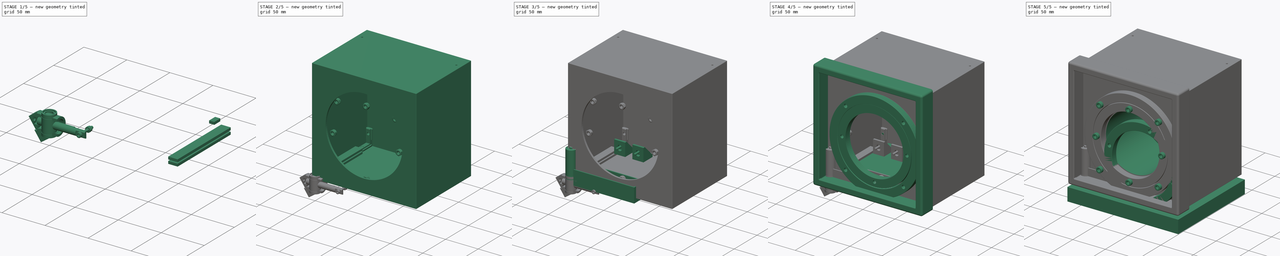
[diagram: build sequence overview — one tinted view per stage of 5, left to right]
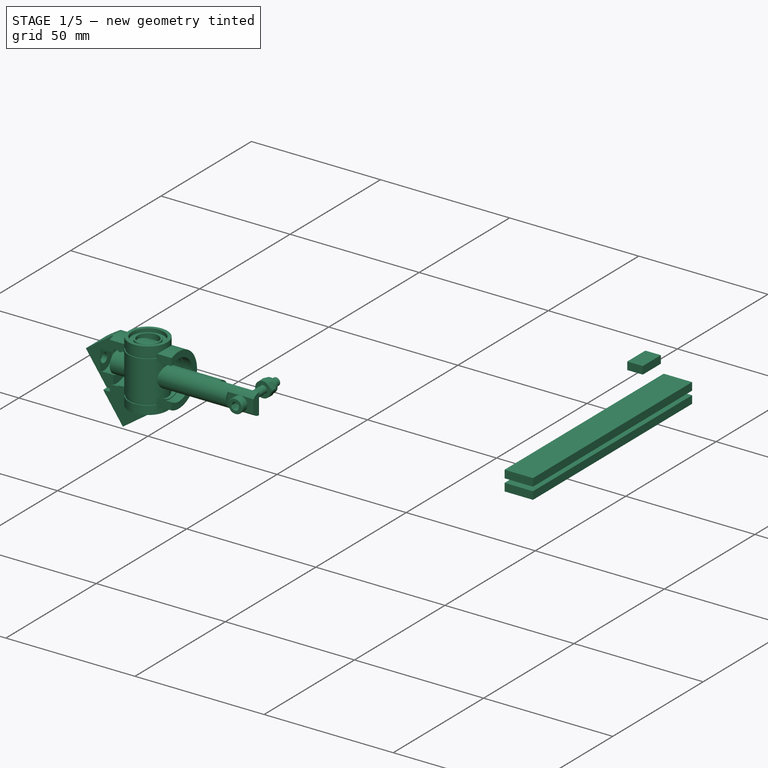
[diagram: stage 1 of 5 — iso view after this stage's code; geometry added in this stage tinted green]
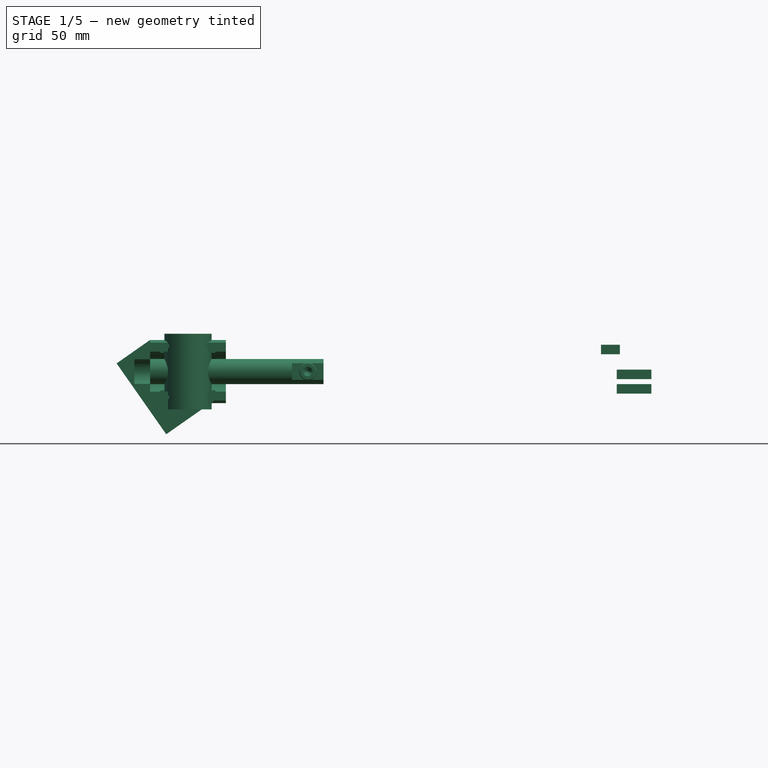
[diagram: stage 1 of 5 — front view after this stage's code; geometry added in this stage tinted green]
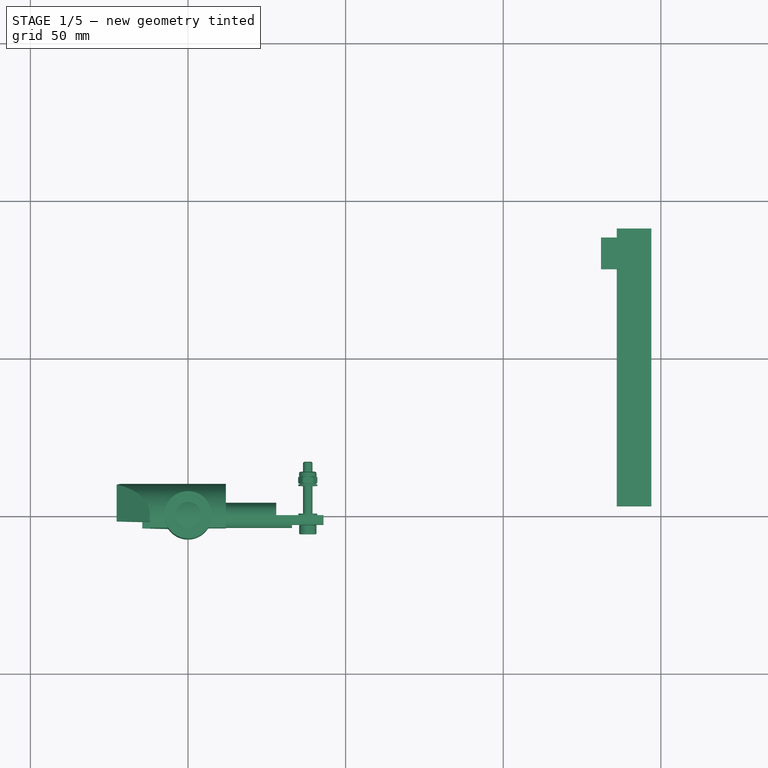
[diagram: stage 1 of 5 — top view after this stage's code; geometry added in this stage tinted green]
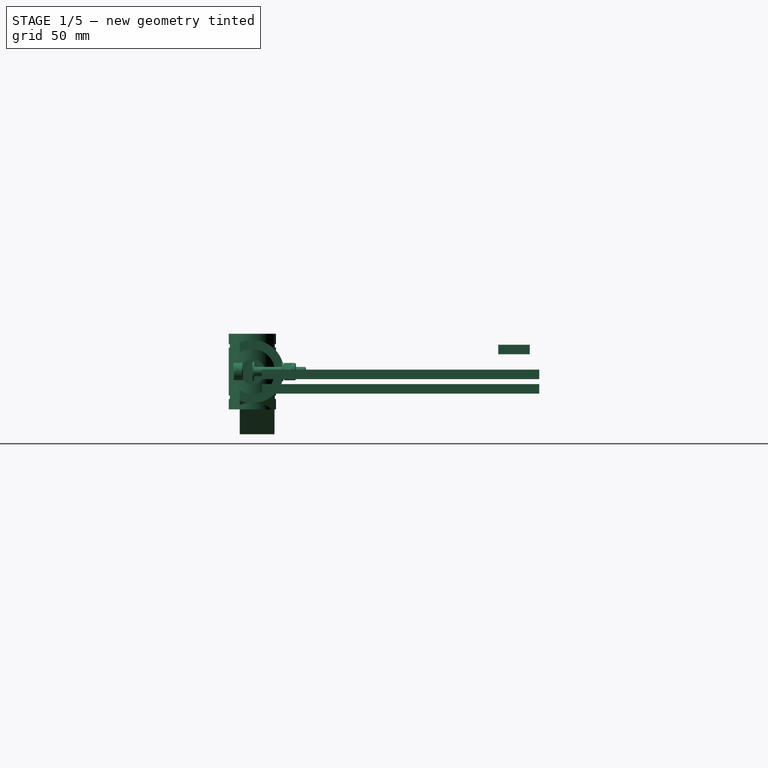
[diagram: stage 1 of 5 — right view after this stage's code; geometry added in this stage tinted green]
FCSTD DOCUMENT  (FreeCAD 0.18R16117 (Git))
Label: w1
License: All rights reserved
LicenseURL: http://en.wikipedia.org/wiki/All_rights_reserved
objects: Part::Feature×130, PartDesign::FeatureBase×55, Part::Cut×41, Part::Box×29, Part::Cylinder×24, App::Part×22, Part::FeaturePython×20, App::DocumentObjectGroup×12, Part::Fillet×5, Part::MultiFuse×5, Sketcher::SketchObject×2, PartDesign::Body×1, PartDesign::Chamfer×1, PartDesign::Pad×1, Part::Sphere×1, Part::Compound×1, PartDesign::Revolution×1
note: 319 computed .brp shape members not serialized (recipe doc carries the construction recipe); baked Part::Feature solids carry a one-line shape summary decoded from their .brp

FEATURE [Part::Box] Box015001008  label="Cube010"
  AttacherType = Attacher::AttachEngine3D
  Height = 3
  Length = 11
  Placement = pos=(136,3,-7) rot=(0,0,1;0rad)
  Width = 88
FEATURE [Part::Box] Box015001009  label="Cube011"
  AttacherType = Attacher::AttachEngine3D
  Height = 3
  Length = 11
  Placement = pos=(136,3,-2.4) rot=(0,0,1;0rad)
  Width = 88
FEATURE [Part::Box] Box015001012  label="Cube014"
  AttacherType = Attacher::AttachEngine3D
  Height = 3
  Length = 6
  Placement = pos=(131,78,5.5) rot=(0,-1,0;0rad)
  Width = 10
FEATURE [App::DocumentObjectGroup] Group014  label="Back_cover"
  Group = -> [Cut004027]
FEATURE [App::DocumentObjectGroup] Group016  label="Box001"
  Group = -> [Cut004022]
FEATURE [App::Part] Part008  label="Case"
  Group = -> [Group013,Screw022,Clone025,Clone026,Clone027,Clone028,Group014,Box015001013,Group015,Part__Feature009021,Clone064,Clone065,Clone066,Clone067,Clone068,Clone069,Clone070,Clone071,Cut004023,Cut004024,Cut004025,Cut004026,Fusion005,Cut004027,Group016,Fusion,Box015001007,Cut004008,Cut004007,Fillet007003,Box015001004,Box015001005,Box015001006,Cylinder021,Box015001008,Box015001009,Box015001012,Cut004009,+8 more]
  License = CC BY 3.0
  LicenseURL = http://creativecommons.org/licenses/by/3.0/
  Origin = -> Origin010
FEATURE [Sketcher::SketchObject] Sketch  label="lm8uu-cross-section"
  MapMode = 5
  Placement = pos=(0,0,0) rot=(1,0,0;1.5708rad)
  sketch-geometry (20):
    g0: LineSegment StartX=7.5 StartY=-12 StartZ=0 EndX=7.5 EndY=-8.7 EndZ=0
    g1: LineSegment StartX=7.5 StartY=7.6 StartZ=0 EndX=7.15 EndY=7.6 EndZ=0
    g2: LineSegment StartX=7.15 StartY=7.6 StartZ=0 EndX=7.15 EndY=8.7 EndZ=0
    g3: LineSegment StartX=7.15 StartY=8.7 StartZ=0 EndX=7.5 EndY=8.7 EndZ=0
    g4: LineSegment StartX=7.5 StartY=8.7 StartZ=0 EndX=7.5 EndY=12 EndZ=0
    g5: LineSegment StartX=7.5 StartY=12 StartZ=0 EndX=6.2 EndY=12 EndZ=0
    g6: LineSegment StartX=6.2 StartY=12 StartZ=0 EndX=6.2 EndY=10.6 EndZ=0
    g7: LineSegment StartX=6.2 StartY=10.6 StartZ=0 EndX=4.6 EndY=10.6 EndZ=0
    g8: LineSegment StartX=4.6 StartY=10.6 StartZ=0 EndX=4.6 EndY=11.3 EndZ=0
    g9: LineSegment StartX=4.6 StartY=11.3 StartZ=0 EndX=4 EndY=11.3 EndZ=0
    g10: LineSegment StartX=4 StartY=11.3 StartZ=0 EndX=4 EndY=-11.3 EndZ=0
    g11: LineSegment StartX=7.5 StartY=-7.6 StartZ=0 EndX=7.15 EndY=-7.6 EndZ=0
    g12: LineSegment StartX=7.15 StartY=-8.7 StartZ=0 EndX=7.5 EndY=-8.7 EndZ=0
    g13: LineSegment StartX=7.5 StartY=-7.6 StartZ=0 EndX=7.5 EndY=7.6 EndZ=0
    g14: LineSegment StartX=7.15 StartY=-7.6 StartZ=0 EndX=7.15 EndY=-8.7 EndZ=0
    g15: LineSegment StartX=7.5 StartY=-12 StartZ=0 EndX=6.2 EndY=-12 EndZ=0
    g16: LineSegment StartX=6.2 StartY=-12 StartZ=0 EndX=6.2 EndY=-10.6 EndZ=0
    g17: LineSegment StartX=6.2 StartY=-10.6 StartZ=0 EndX=4.6 EndY=-10.6 EndZ=0
    g18: LineSegment StartX=4.6 StartY=-10.6 StartZ=0 EndX=4.6 EndY=-11.3 EndZ=0
    g19: LineSegment StartX=4.6 StartY=-11.3 StartZ=0 EndX=4 EndY=-11.3 EndZ=0
  constraints (58):
    c: Coincident(g13,g1)
    c: Coincident(g1,g2)
    c: Vertical(g2)
    c: Coincident(g2,g3)
    c: Coincident(g3,g4)
    c: Vertical(g4)
    c: Coincident(g4,g5)
    c: Coincident(g5,g6)
    c: Vertical(g6)
    c: Coincident(g6,g7)
    c: Horizontal(g7)
    c: Coincident(g7,g8)
    c: Vertical(g8)
    c: Coincident(g8,g9)
    c: Horizontal(g9)
    c: Coincident(g9,g10)
    c: Vertical(g10)
    c: Horizontal(g1)
    c: Horizontal(g5)
    c: Horizontal(g3)
    c: PointOnObject(g3,g0)
    c: Symmetric(g0,g4,g-1)
    c: DistanceY(g4,g0) = -24
    c: DistanceY(g2) = 1.1
    c: DistanceX(g3) = 0.35
    c: DistanceX(g-1,g4) = 7.5
    c: DistanceX(g-1,g9) = 4
    c: DistanceX(g5) = -1.3
    c: DistanceX(g9) = -0.6
    c: DistanceY(g6) = -1.4
    c: DistanceY(g8) = 0.7
    c: Horizontal(g11)
    c: Horizontal(g12)
    c: Coincident(g13,g11)
    c: Tangent(g0,g13)
    c: Coincident(g12,g0)
    c: PointOnObject(g14,g11)
    c: Coincident(g14,g12)
    c: Vertical(g14)
    c: Symmetric(g1,g11,g-1)
    c: DistanceY(g13) = 15.2
    c: Equal(g14,g2)
    c: Coincident(g0,g15)
    c: Horizontal(g15)
    c: Coincident(g15,g16)
    c: Vertical(g16)
    c: Coincident(g16,g17)
    c: Horizontal(g17)
    c: Coincident(g17,g18)
    c: Vertical(g18)
    c: Coincident(g18,g19)
    c: Horizontal(g19)
    c: Coincident(g10,g19)
    c: Symmetric(g10,g9,g-1)
    c: Symmetric(g16,g6,g-1)
    c: Symmetric(g17,g7,g-1)
    c: Coincident(g14,g11)
    c: PointOnObject(g11,g2)
FEATURE [Part::Cylinder] Cylinder025  label="Bar_8mm"
  Angle = 360
  AttacherType = Attacher::AttachEngine3D
  Height = 55
  Placement = pos=(43,0,0) rot=(0,-1,0;1.5708rad)
  Radius = 4
FEATURE [PartDesign::Revolution] Revolution  label="LM8uu"
  Angle = 360
  Axis = (0,0,1)
  Base = (0,0,0)
  Placement = pos=(0,0,0) rot=(1,0,0;1.5708rad)
  Profile = -> Sketch
  ReferenceAxis = -> Sketch [V_Axis]
  Reversed = true
FEATURE [Part::Feature] Revolution001  label="LM8UU"
  Placement = pos=(0,0,0) rot=(0.57735,-0.57735,0.57735;2.0944rad)
  shape: bbox 24 x 15 x 15 mm, 20 faces (baked)
FEATURE [Part::Box] Box015001016  label="Cube019"
  AttacherType = Attacher::AttachEngine3D
  Height = 10
  Length = 15
  Placement = pos=(28,0,-5) rot=(0,0,1;0rad)
  Width = 10
FEATURE [Part::Box] Box015001017  label="Cube020"
  AttacherType = Attacher::AttachEngine3D
  Height = 10
  Length = 10
  Placement = pos=(33,-13,-5) rot=(0,0,1;0rad)
  Width = 10
FEATURE [Part::FeaturePython] Nut  label="M3-Nut_axis"  # Fasteners workbench fastener (typed FeaturePython)
  Placement = pos=(38,9.85,0) rot=(-1,0,0;1.5708rad)
  diameter = 1
  invert = false
  matchOuter = false
  offset = 0
  thread = false
  type = 2
FEATURE [Part::Box] Box009  label="Cube021"
  AttacherType = Attacher::AttachEngine3D
  Height = 9
  Length = 12
  Placement = pos=(-10,-4,10) rot=(0,1,0;0.959931rad)
  Width = 11
FEATURE [Part::Box] Box015001018  label="Cube022"
  AttacherType = Attacher::AttachEngine3D
  Height = 20
  Length = 11
  Placement = pos=(-12,-12,11) rot=(0,1,0;3.14159rad)
  Width = 10
FEATURE [Part::Box] Box004  label="Cube023"
  AttacherType = Attacher::AttachEngine3D
  Height = 28
  Length = 22
  Placement = pos=(-24,-4,-5) rot=(0,1,0;0.959931rad)
  Width = 11
FEATURE [Part::Cylinder] Cylinder032  label="Cylinder018"
  Angle = 360
  AttacherType = Attacher::AttachEngine3D
  Height = 40
  Placement = pos=(12,0,0) rot=(0,-1,0;1.5708rad)
  Radius = 10
FEATURE [Part::Box] Box015001019  label="Cube024"
  AttacherType = Attacher::AttachEngine3D
  Height = 20
  Length = 41
  Placement = pos=(12,-14,10) rot=(0,1,0;3.14159rad)
  Width = 10
FEATURE [Part::Cylinder] Cylinder033  label="Cylinder019"
  Angle = 360
  AttacherType = Attacher::AttachEngine3D
  Height = 24
  Placement = pos=(12,0,0) rot=(0,-1,0;1.5708rad)
  Radius = 7
FEATURE [Part::FeaturePython] Screw  label="M3x20-Screw"  # Fasteners workbench fastener (typed FeaturePython)
  Placement = pos=(38,-3,0) rot=(1,0,0;1.5708rad)
  diameter = 4
  invert = false
  length = 7
  matchOuter = false
  offset = 0
  thread = false
  type = 15
FEATURE [Part::Feature] Connect001  label="GT2 20T Smooth 5mm Bore"
  Placement = pos=(38,0.675,0) rot=(-1,0,0;1.5708rad)
  shape: bbox 18 x 8.75 x 18 mm, 24 faces (baked)
FEATURE [Part::FeaturePython] Washer003  label="M3-Washer"  # Fasteners workbench fastener (typed FeaturePython)
  Placement = pos=(38,9.85,0) rot=(1,0,0;1.5708rad)
  diameter = 4
  invert = false
  matchOuter = false
  offset = 0
  type = 2
FEATURE [Part::Cylinder] Cylinder034  label="Bar_8mm002"
  Angle = 360
  AttacherType = Attacher::AttachEngine3D
  Height = 5
  Placement = pos=(-12,0,0) rot=(0,-1,0;1.5708rad)
  Radius = 4.4
FEATURE [Part::Feature] Revolution001001  label="LM8UU-simple_copy"
  Placement = pos=(0,0,0) rot=(0.57735,-0.57735,0.57735;2.0944rad)
  shape: bbox 24 x 15 x 15 mm, 20 faces (baked)
FEATURE [Part::Cut] Cut004
  Base = -> Box004
  Tool = -> Box009
FEATURE [Part::MultiFuse] Fusion006
  Shapes = -> [Cut004,Cylinder032]
FEATURE [Part::Cut] Cut005
  Base = -> Fusion006
  Tool = -> Revolution001001
FEATURE [Part::Cylinder] Cylinder035
  Angle = 360
  AttacherType = Attacher::AttachEngine3D
  Height = 5
  Placement = pos=(38,-4,0) rot=(-1,0,0;1.5708rad)
  Radius = 1.6
FEATURE [Part::Cylinder] Cylinder026  label="Cylinder036"
  Angle = 360
  AttacherType = Attacher::AttachEngine3D
  Height = 5
  Placement = pos=(-12,0,0) rot=(0,1,0;1.5708rad)
  Radius = 2
FEATURE [Part::FeaturePython] Washer  label="M3-Washer_axis_in"  # Fasteners workbench fastener (typed FeaturePython)
  Placement = pos=(38,0.55,0) rot=(1,0,0;1.5708rad)
  diameter = 4
  invert = false
  matchOuter = false
  offset = 0
  type = 2
FEATURE [Part::Cut] Cut004030
  Base = -> Cylinder025
  Tool = -> Box015001016
FEATURE [Part::Cut] Cut001
  Base = -> Cut004030
  Tool = -> Box015001017
FEATURE [Part::Cut] Cut004028
  Base = -> Cut001
  Tool = -> Cylinder035
FEATURE [Part::Cut] Cut003  label="Piston"
  Base = -> Cut004028
  Tool = -> Cylinder026
FEATURE [App::Part] Part019  label="Linear_GT2_Belt_Tensioner_Cursor"
  Group = -> [Cylinder025,Box015001016,Box015001017,Cut004030,Cut001,Screw,Washer,Nut,Washer003,Connect001,Cylinder035,Cut004028,Cylinder026,Cut003]
  Origin = -> Origin022
  Placement = pos=(-15,0,0) rot=(0,0,1;0rad)
FEATURE [Part::Box] Box015001020  label="Cube005"
  AttacherType = Attacher::AttachEngine3D
  Height = 13
  Length = 34
  Placement = pos=(-36,-4,-1) rot=(0,1,0;0.959931rad)
  Width = 16
FEATURE [Part::Cut] Cut006
  Base = -> Cut005
  Tool = -> Cylinder033
FEATURE [Part::Cut] Cut007
  Base = -> Cut006
  Tool = -> Cylinder034
FEATURE [Part::Box] Box006  label="Cube025"
  AttacherType = Attacher::AttachEngine3D
  Height = 28
  Length = 22
  Placement = pos=(-39,-4,18) rot=(0,1,0;0.959931rad)
  Width = 16
FEATURE [Part::Feature] Cut012001  label="Cut004031"
  shape: bbox 34.65 x 14 x 29.89 mm, 26 faces (baked)
FEATURE [Part::Cylinder] Cylinder036  label="Cylinder037"
  Angle = 360
  AttacherType = Attacher::AttachEngine3D
  Height = 12
  Placement = pos=(-7,0,0) rot=(0,-1,0;1.5708rad)
  Radius = 1.8
FEATURE [Part::Cut] Cut008
  Base = -> Cut007
  Tool = -> Cylinder036
FEATURE [Part::Cut] Cut009
  Base = -> Cut008
  Tool = -> Box015001019
FEATURE [Part::Cut] Cut010
  Base = -> Cut009
  Tool = -> Box006
FEATURE [Part::Cut] Cut012002
  Base = -> Cut010
  Tool = -> Box015001020
FEATURE [Part::Cut] Cut004029
  Base = -> Cut012002
  Tool = -> Box015001018
FEATURE [App::Part] Part020  label="Linear_GT2_Belt_Tensioner_case"
  Group = -> [Revolution001,Revolution001001,Box004,Box015001020,Box006,Cylinder032,Cylinder033,Cylinder034,Cylinder036,Box015001019,Box015001018,Box009,Cut004,Fusion006,Cut005,Cut006,Cut007,Cut008,Cut009,Cut010,Cut012002,Cut004029,Sketch,Revolution,Cut012001]
  Origin = -> Origin021
FEATURE [App::Part] Part002
  Group = -> [Part019,Part020]
  Origin = -> Origin002
  Placement = pos=(79,101,30.2) rot=(0.461749,0,0.887011;3.14159rad)
FEATURE [App::Part] Part009  label="Frame"
  Group = -> [Part012,Part013,Part002]
  License = CC BY 3.0
  LicenseURL = http://creativecommons.org/licenses/by/3.0/
  Origin = -> Origin011
FEATURE [App::DocumentObjectGroup] Group004  label="Mechanics"
  Group = -> [Part007,Part008,Part009,Part014]
FEATURE [App::DocumentObjectGroup] Group001  label="Watch Winder"
  Group = -> [Group004,Group]
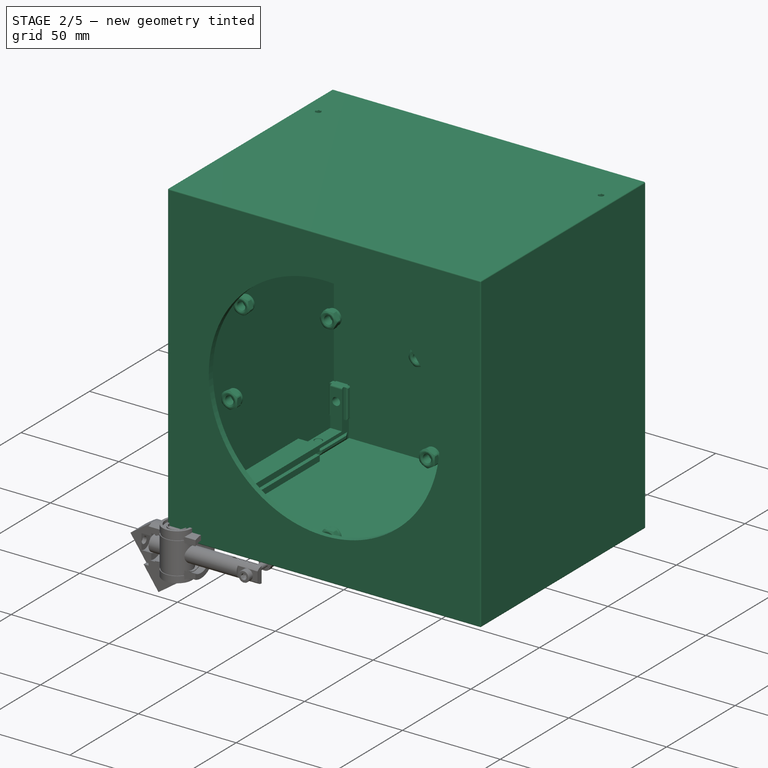
[diagram: stage 2 of 5 — iso view after this stage's code; geometry added in this stage tinted green]
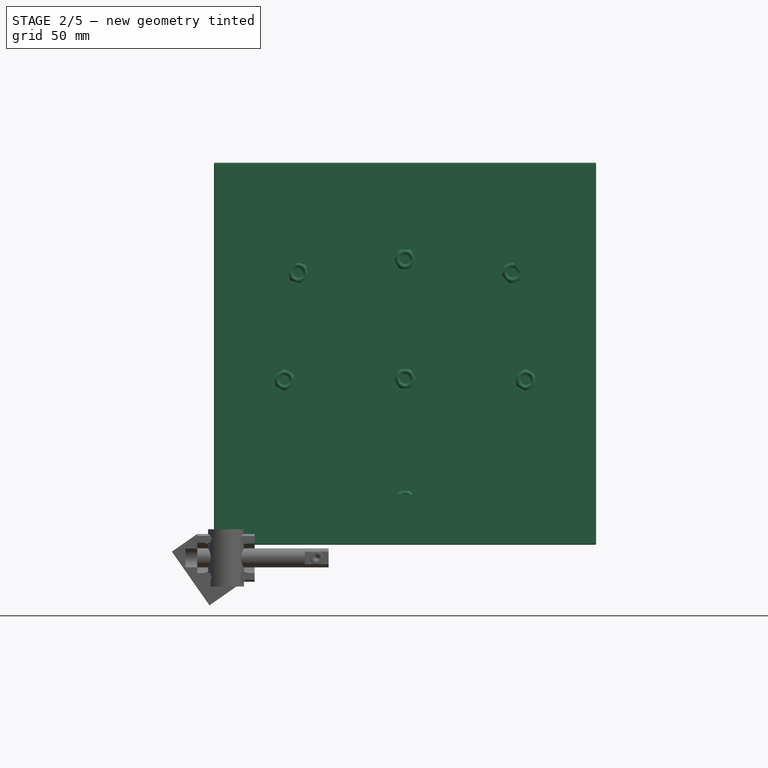
[diagram: stage 2 of 5 — front view after this stage's code; geometry added in this stage tinted green]
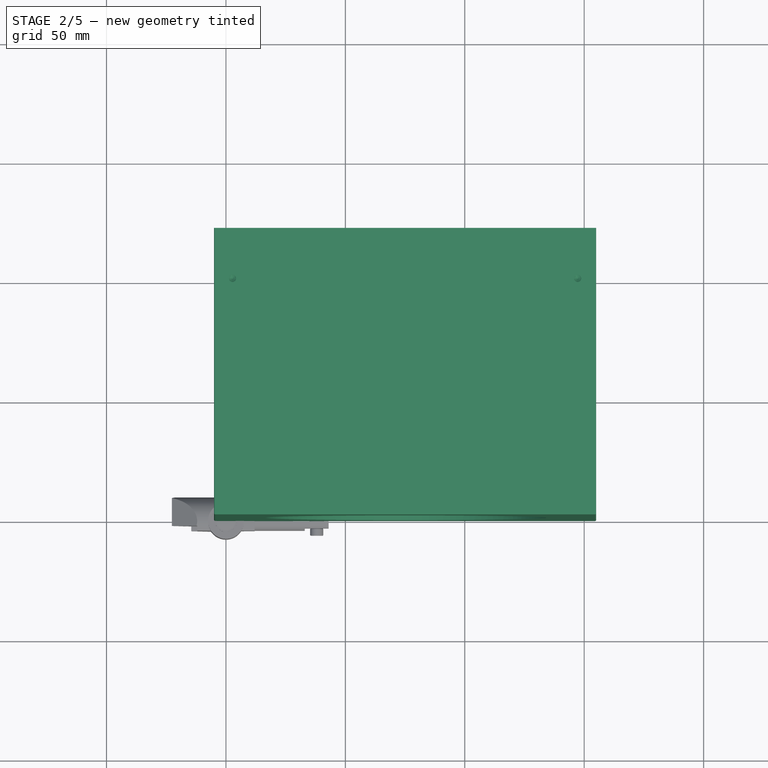
[diagram: stage 2 of 5 — top view after this stage's code; geometry added in this stage tinted green]
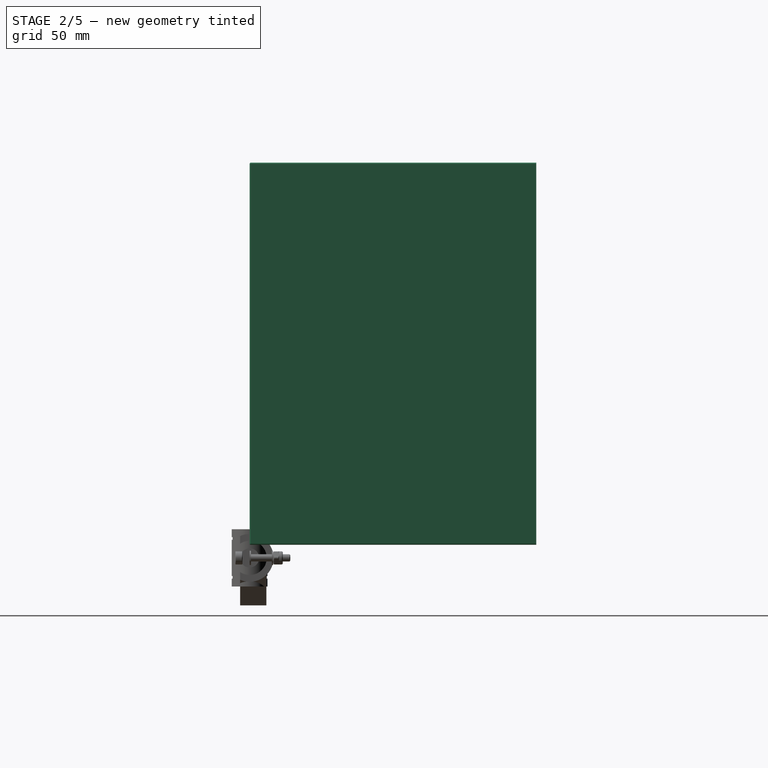
[diagram: stage 2 of 5 — right view after this stage's code; geometry added in this stage tinted green]
FEATURE [App::DocumentObjectGroup] Group011  label="Screws_rotor"
  Group = -> [Screw011,Screw015,Screw019,Clone004,Clone005,Clone006,Clone007,Clone008,Clone009,Clone010,Clone011]
FEATURE [Part::Box] Box015001004  label="Cube008"
  AttacherType = Attacher::AttachEngine3D
  Height = 3
  Length = 11
  Placement = pos=(-7,3,-7) rot=(0,0,1;0rad)
  Width = 88
FEATURE [Part::Box] Box015001005  label="Cube009"
  AttacherType = Attacher::AttachEngine3D
  Height = 3
  Length = 11
  Placement = pos=(-7,3,-2.4) rot=(0,0,1;0rad)
  Width = 88
FEATURE [Part::Box] Box015001006  label="Case in primitive001"
  AttacherType = Attacher::AttachEngine3D
  Height = 154
  Length = 154
  Placement = pos=(-7,3,-7) rot=(0,0,1;0rad)
  Width = 117
FEATURE [Part::Box] Box015001007  label="Case out primitive001"
  AttacherType = Attacher::AttachEngine3D
  Height = 160
  Length = 160
  Placement = pos=(-10,0,-10) rot=(0,0,1;0rad)
  Width = 120
FEATURE [Part::Cylinder] Cylinder021  label="Cylinder017"
  Angle = 360
  AttacherType = Attacher::AttachEngine3D
  Height = 5
  Placement = pos=(70,5,70) rot=(1,0,0;1.5708rad)
  Radius = 59
FEATURE [Part::Cut] Cut004007
  Base = -> Box015001007
  Tool = -> Box015001006
FEATURE [Part::Cut] Cut004008
  Base = -> Cut004007
  Tool = -> Cylinder021
FEATURE [Part::MultiFuse] Fusion
  Placement = pos=(5,0,15.5) rot=(0,0,1;0rad)
  Shapes = -> [Cut004008,Box015001004,Box015001005,Box015001008,Box015001009]
FEATURE [Part::Cut] Cut004009
  Base = -> Fusion
  Tool = -> Box015001012
FEATURE [Part::Fillet] Fillet007003  label="Box"
  Base = -> Cut004009
  Edges = 8 edges r=0.5: [Edge74,Edge75,Edge76,Edge77,Edge78,Edge79,Edge80,Edge81]
FEATURE [Part::FeaturePython] Screw022  label="M4x8-Screw"  # Fasteners workbench fastener (typed FeaturePython)
  Placement = pos=(2.75,120,26.5) rot=(-1,0,0;1.5708rad)
  diameter = 2
  invert = false
  length = 0
  matchOuter = false
  offset = 0
  thread = false
  type = 3
FEATURE [Part::Box] Box015001013  label="Cube"
  AttacherType = Attacher::AttachEngine3D
  Height = 154
  Length = 154
  Placement = pos=(-2,117,8.5) rot=(0,0,1;0rad)
  Width = 3
FEATURE [PartDesign::FeatureBase] Clone054  label="L_002"
  BaseFeature = -> Cut003001
  Placement = pos=(-5,-99,0) rot=(0,0,1;0rad)
FEATURE [App::Part] Part018  label="vFrame support"
  Group = -> [Screw023,Cut003001,Clone029,Clone030,Clone031,Clone032,Nut005,Washer002,Clone033,Clone034,Clone035,Clone036,Clone037,Clone038,Clone039,Clone040,Clone053,Clone054]
  License = CC BY 3.0
  LicenseURL = http://creativecommons.org/licenses/by/3.0/
  Origin = -> Origin020
FEATURE [App::Part] Part013  label="hFrame"
  Group = -> [Part011,Part015,Part018]
  License = CC BY 3.0
  LicenseURL = http://creativecommons.org/licenses/by/3.0/
  Origin = -> Origin015
FEATURE [Part::FeaturePython] Nut007  label="M5-Nut_"  # Fasteners workbench fastener (typed FeaturePython)
  Placement = pos=(75,101,75) rot=(-1,0,0;1.5708rad)
  diameter = 3
  invert = false
  matchOuter = false
  offset = 0
  thread = false
  type = 2
FEATURE [PartDesign::FeatureBase] Clone055  label="M5-Nut_000"
  BaseFeature = -> Nut007
  Placement = pos=(75,101,75) rot=(-1,0,0;1.5708rad)
FEATURE [PartDesign::FeatureBase] Clone056  label="M5-Nut_001"
  BaseFeature = -> Nut007
  Placement = pos=(30.2,3,29.6) rot=(-0.983106,-0.129428,-0.129428;1.58783rad)
FEATURE [PartDesign::FeatureBase] Clone057  label="M5-Nut_002"
  BaseFeature = -> Nut007
  Placement = pos=(30.2,3,119.4) rot=(-0.983106,0.129428,0.129428;1.58783rad)
FEATURE [PartDesign::FeatureBase] Clone058  label="M5-Nut_003"
  BaseFeature = -> Nut007
  Placement = pos=(120,3,119.4) rot=(-0.983106,-0.129428,-0.129428;1.58783rad)
FEATURE [PartDesign::FeatureBase] Clone059  label="M5-Nut_004"
  BaseFeature = -> Nut007
  Placement = pos=(120,3,29.6) rot=(-0.983106,0.129428,0.129428;1.58783rad)
FEATURE [PartDesign::FeatureBase] Clone060  label="M5-Nut_005"
  BaseFeature = -> Nut007
  Placement = pos=(24.5,2.5,74.5) rot=(-0.935113,0.250563,0.250563;1.63783rad)
FEATURE [PartDesign::FeatureBase] Clone061  label="M5-Nut_006"
  BaseFeature = -> Nut007
  Placement = pos=(75,2.5,125) rot=(-1,0,0;1.5708rad)
FEATURE [PartDesign::FeatureBase] Clone062  label="M5-Nut_007"
  BaseFeature = -> Nut007
  Placement = pos=(75,2.5,24) rot=(-1,0,0;1.5708rad)
FEATURE [PartDesign::FeatureBase] Clone063  label="M5-Nut_008"
  BaseFeature = -> Nut007
  Placement = pos=(125.5,2.5,74.5) rot=(-0.939157,0.242883,0.242883;1.63353rad)
FEATURE [App::DocumentObjectGroup] Group010  label="Nuts_rotor"
  Group = -> [Nut007,Clone055,Clone056,Clone057,Clone058,Clone059,Clone060,Clone061,Clone062,Clone063]
FEATURE [App::Part] Part007  label="Rotor"
  Group = -> [Fusion003,Part,Cut002001,Cut004002,Cylinder017,Cylinder018,Cylinder019,Cylinder020,Cut004003,Fusion004,Group010,Group011,Screw011,Screw015,Screw019,Clone004,Clone005,Clone006,Clone007,Clone008,Clone009,Clone010,Clone011,Part010,Chamfer001,Sketch004,Pad002,Cut002,Nut007,Clone055,Clone056,Clone057,Clone058,Clone059,Clone060,Clone061,Clone062,Clone063]
  License = CC BY 3.0
  LicenseURL = http://creativecommons.org/licenses/by/3.0/
  Origin = -> Origin009
  Placement = pos=(0,0,11) rot=(0,0,1;0rad)
FEATURE [Part::Feature] Part__Feature009021  label="2020_L_Internal_Joint_"
  Placement = pos=(2.75,111.9,13.5) rot=(0.57735,-0.57735,-0.57735;2.0944rad)
  shape: bbox 9.5 x 25 x 25 mm, 44 faces (baked)
FEATURE [PartDesign::FeatureBase] Clone064
  BaseFeature = -> Part__Feature009021
  Placement = pos=(2.75,111.9,13.5) rot=(0.57735,-0.57735,-0.57735;2.0944rad)
FEATURE [PartDesign::FeatureBase] Clone065
  BaseFeature = -> Part__Feature009021
  Placement = pos=(147.25,111.9,13.5) rot=(0.57735,-0.57735,-0.57735;2.0944rad)
FEATURE [PartDesign::FeatureBase] Clone066
  BaseFeature = -> Part__Feature009021
  Placement = pos=(2.75,111.9,157.5) rot=(0.57735,-0.57735,0.57735;4.18879rad)
FEATURE [PartDesign::FeatureBase] Clone067
  BaseFeature = -> Part__Feature009021
  Placement = pos=(147.25,111.9,157.5) rot=(0.57735,-0.57735,0.57735;4.18879rad)
FEATURE [App::DocumentObjectGroup] Group015  label="Case_Joint"
  Group = -> [Part__Feature009021,Clone064,Clone065,Clone066,Clone067]
FEATURE [PartDesign::FeatureBase] Clone068
  BaseFeature = -> Screw022
  Placement = pos=(2.75,98.9,165.5) rot=(0,0,1;0rad)
FEATURE [PartDesign::FeatureBase] Clone069
  BaseFeature = -> Screw022
  Placement = pos=(147.25,98.9,165.5) rot=(0,0,1;0rad)
FEATURE [PartDesign::FeatureBase] Clone070
  BaseFeature = -> Screw022
  Placement = pos=(147.25,98.9,5.5) rot=(1,0,0;3.14159rad)
FEATURE [PartDesign::FeatureBase] Clone071
  BaseFeature = -> Screw022
  Placement = pos=(2.75,98.9,5.5) rot=(1,0,0;3.14159rad)
FEATURE [App::DocumentObjectGroup] Group013  label="Screws_case"
  Group = -> [Screw022,Clone025,Clone026,Clone027,Clone028,Clone068,Clone069,Clone070,Clone071]
FEATURE [Part::Feature] Cut004015  label="Cut003"
  Placement = pos=(-2.25,93.9,162.5) rot=(0,0,1;0rad)
  shape: bbox 6 x 6 x 4 mm, 6 faces (baked)
FEATURE [Part::Feature] Cut004016  label="Cut004015"
  Placement = pos=(142.25,93.9,162.5) rot=(0,0,1;0rad)
  shape: bbox 6 x 6 x 4 mm, 6 faces (baked)
FEATURE [Part::Feature] Cut004017  label="Cut004016"
  Placement = pos=(-2.25,103.9,8.5) rot=(1,0,0;3.14159rad)
  shape: bbox 6 x 6 x 4 mm, 6 faces (baked)
FEATURE [Part::Feature] Cut004018  label="Cut004017"
  Placement = pos=(142.25,103.9,8.5) rot=(1,0,0;3.14159rad)
  shape: bbox 6 x 6 x 4 mm, 6 faces (baked)
FEATURE [Part::Cut] Cut004019
  Base = -> Fillet007003
  Tool = -> Cut004015
FEATURE [Part::Cut] Cut004020
  Base = -> Cut004019
  Tool = -> Cut004016
FEATURE [Part::Cut] Cut004021
  Base = -> Cut004020
  Tool = -> Cut004017
FEATURE [Part::Cut] Cut004022
  Base = -> Cut004021
  Tool = -> Cut004018
FEATURE [Part::Feature] Cut004023
  Placement = pos=(-2.25,117,31.5) rot=(-1,0,0;1.5708rad)
  shape: bbox 6 x 4 x 6 mm, 6 faces (baked)
FEATURE [Part::Feature] Cut004024
  Placement = pos=(-2.25,117,149.5) rot=(-1,0,0;1.5708rad)
  shape: bbox 6 x 4 x 6 mm, 6 faces (baked)
FEATURE [Part::Feature] Cut004025
  Placement = pos=(142.25,117,31.5) rot=(-1,0,0;1.5708rad)
  shape: bbox 6 x 4 x 6 mm, 6 faces (baked)
FEATURE [Part::Feature] Cut004026
  Placement = pos=(142.25,117,149.5) rot=(-1,0,0;1.5708rad)
  shape: bbox 6 x 4 x 6 mm, 6 faces (baked)
FEATURE [Part::MultiFuse] Fusion005
  Shapes = -> [Cut004023,Cut004025,Cut004026,Cut004024]
FEATURE [Part::Cut] Cut004027
  Base = -> Box015001013
  Tool = -> Fusion005
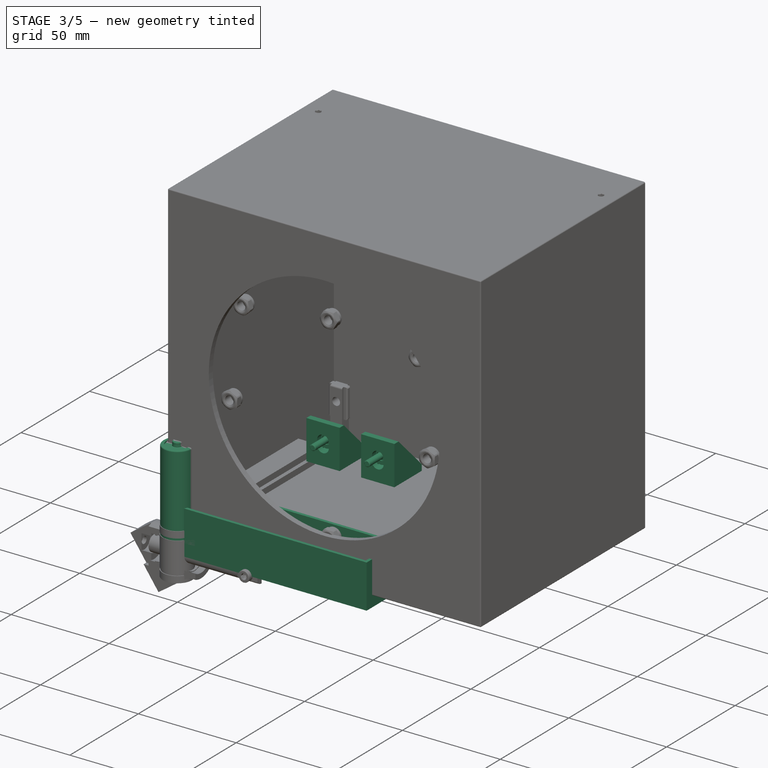
[diagram: stage 3 of 5 — iso view after this stage's code; geometry added in this stage tinted green]
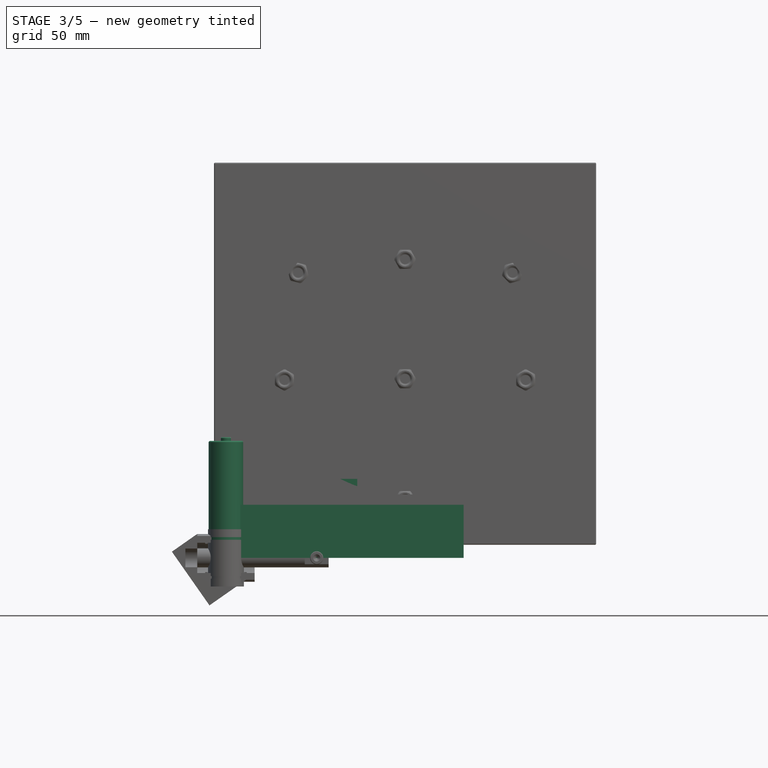
[diagram: stage 3 of 5 — front view after this stage's code; geometry added in this stage tinted green]
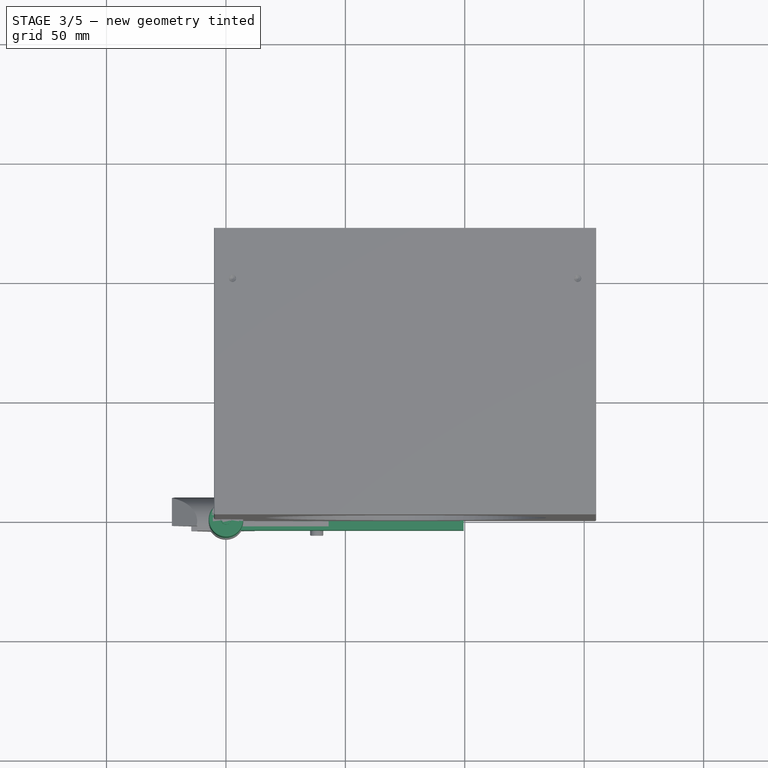
[diagram: stage 3 of 5 — top view after this stage's code; geometry added in this stage tinted green]
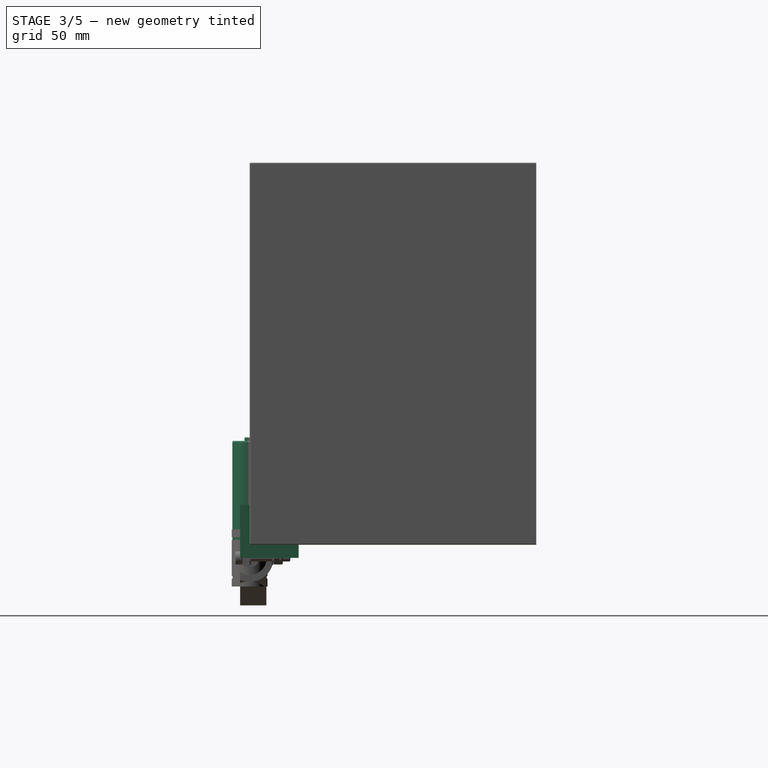
[diagram: stage 3 of 5 — right view after this stage's code; geometry added in this stage tinted green]
FEATURE [Part::Feature] Cut003001  label="L_000"
  Placement = pos=(-5,-4,0) rot=(0,0,1;0rad)
  shape: bbox 20 x 17 x 20 mm, 20 faces (baked)
FEATURE [Part::Feature] Cut004011  label="L_003"
  Placement = pos=(-65,224.2,0) rot=(0,0,-1;1.5708rad)
  shape: bbox 17 x 20 x 20 mm, 20 faces (baked)
FEATURE [Part::FeaturePython] Screw020  label="M3x10-Screw"  # Fasteners workbench fastener (typed FeaturePython)
  Placement = pos=(45.4,83.35,23.75) rot=(-1,0,0;1.5708rad)
  diameter = 4
  invert = false
  length = 3
  matchOuter = false
  offset = 0
  thread = false
  type = 15
FEATURE [App::Part] Part010
  Group = -> [Cylinder005,Cylinder006,Cylinder007,Cylinder008,Cylinder010,Cylinder011,Cut015,Cut016,Cut017,Cut018,Cut019,Fillet006,Cut013,Cut014,Cut012,Cut,Cylinder003,Cylinder001,Cut011,Cylinder002,Cylinder004,Cylinder,Cylinder009,Fillet005]
  License = CC BY 3.0
  LicenseURL = http://creativecommons.org/licenses/by/3.0/
  Origin = -> Origin012
FEATURE [Part::FeaturePython] Washer001  label="M4-Washer001"  # Fasteners workbench fastener (typed FeaturePython)
  Placement = pos=(46,83.35,24) rot=(1,0,0;1.5708rad)
  diameter = 5
  invert = false
  matchOuter = false
  offset = 0
  type = 2
FEATURE [App::Part] Part015  label="Board_002"
  Group = -> [Box015001014,Box015001002,Box015001003,Cut004006,Cut004013]
  License = CC BY 3.0
  LicenseURL = http://creativecommons.org/licenses/by/3.0/
  Origin = -> Origin017
FEATURE [App::Part] Part016  label="Board_001"
  Group = -> [Box015001010]
  License = CC BY 3.0
  LicenseURL = http://creativecommons.org/licenses/by/3.0/
  Origin = -> Origin018
FEATURE [App::Part] Part012  label="vFrame"
  Group = -> [Part016]
  License = CC BY 3.0
  LicenseURL = http://creativecommons.org/licenses/by/3.0/
  Origin = -> Origin014
FEATURE [Part::Box] Box001  label="Cube016"
  AttacherType = Attacher::AttachEngine3D
  Height = 20.75
  Length = 93.5
  Placement = pos=(1.5,1.5,1.5) rot=(0,0,1;0rad)
  Width = 21.5
FEATURE [Part::Box] Box015001015  label="Cube018"
  AttacherType = Attacher::AttachEngine3D
  Height = 22.25
  Length = 96.5
  Width = 24.5
FEATURE [Part::Cut] Cut004014
  Base = -> Box015001015
  Placement = pos=(3,-4,0) rot=(0,0,1;0rad)
  Tool = -> Box001
FEATURE [App::Part] Part017  label="Charger001"
  Group = -> [Box001,Box015001015,Cut004014]
  License = CC BY 3.0
  LicenseURL = http://creativecommons.org/licenses/by/3.0/
  Origin = -> Origin019
  Placement = pos=(115,17,13) rot=(0,0,1;1.5708rad)
FEATURE [Part::Feature] Common001  label="connect"
  shape: bbox 11 x 11 x 50.5 mm, 10 faces (baked)
FEATURE [Part::Feature] Cut004001  label="body"
  shape: bbox 15.69 x 15.69 x 48.99 mm, 8 faces (baked)
FEATURE [Part::Compound] Compound  label="R6_bat"
  Links = -> [Cut004001,Common001]
FEATURE [App::Part] Part003  label="Battery"
  Group = -> [Common001,Cut004001,Compound]
  License = CC BY 3.0
  LicenseURL = http://creativecommons.org/licenses/by/3.0/
  Origin = -> Origin003
  Placement = pos=(102,97,30) rot=(1,0,0;1.5708rad)
FEATURE [App::DocumentObjectGroup] Group  label="Electronics"
  Group = -> [Part__Feature017,Part001,Part003,Part004,L298N,Part017]
FEATURE [Part::FeaturePython] Screw023  label="M3x8-Screw"  # Fasteners workbench fastener (typed FeaturePython)
  Placement = pos=(129.5,107.5,11.5) rot=(1,0,0;3.14159rad)
  diameter = 1
  invert = false
  length = 0
  matchOuter = false
  offset = 0
  thread = false
  type = 3
FEATURE [PartDesign::FeatureBase] Clone029  label="Screw_001"
  BaseFeature = -> Screw023
  Placement = pos=(129.5,107.5,11.5) rot=(1,0,0;3.14159rad)
FEATURE [PartDesign::FeatureBase] Clone030  label="Screw_002"
  BaseFeature = -> Screw023
  Placement = pos=(141,107.5,23.3) rot=(0,1,0;1.5708rad)
FEATURE [PartDesign::FeatureBase] Clone031  label="Screw_003"
  BaseFeature = -> Screw023
  Placement = pos=(129.5,12.5,11.5) rot=(1,0,0;3.14159rad)
FEATURE [PartDesign::FeatureBase] Clone032  label="Screw_004"
  BaseFeature = -> Screw023
  Placement = pos=(141,12.5,23.3) rot=(0,1,0;1.5708rad)
FEATURE [Part::FeaturePython] Nut005  label="M3-Nut"  # Fasteners workbench fastener (typed FeaturePython)
  Placement = pos=(129.5,107.5,16.65) rot=(0,0,1;0rad)
  diameter = 4
  invert = false
  matchOuter = false
  offset = 0
  thread = false
  type = 3
FEATURE [Part::FeaturePython] Washer002  label="M4-Washer"  # Fasteners workbench fastener (typed FeaturePython)
  Placement = pos=(129.5,107.5,16.1) rot=(0,0,1;0rad)
  diameter = 5
  invert = false
  matchOuter = false
  offset = 0
  type = 2
FEATURE [PartDesign::FeatureBase] Clone033  label="Nut_001"
  BaseFeature = -> Nut005
  Placement = pos=(129.5,107.5,16.65) rot=(0,0,1;0rad)
FEATURE [PartDesign::FeatureBase] Clone034  label="Nut_002"
  BaseFeature = -> Nut005
  Placement = pos=(133.45,107.5,23.3) rot=(0,1,0;1.5708rad)
FEATURE [PartDesign::FeatureBase] Clone035  label="Nut_003"
  BaseFeature = -> Nut005
  Placement = pos=(129.5,12.5,16.65) rot=(0,0,1;0rad)
FEATURE [PartDesign::FeatureBase] Clone036  label="Nut_004"
  BaseFeature = -> Nut005
  Placement = pos=(133.45,12.5,23.3) rot=(0,1,0;1.5708rad)
FEATURE [PartDesign::FeatureBase] Clone037  label="Washer_001"
  BaseFeature = -> Washer002
  Placement = pos=(129.5,107.5,16.1) rot=(0,0,1;0rad)
FEATURE [PartDesign::FeatureBase] Clone038  label="Washer_002"
  BaseFeature = -> Washer002
  Placement = pos=(135.85,107.5,23.3) rot=(0,1,0;1.5708rad)
FEATURE [PartDesign::FeatureBase] Clone039  label="Washer_003"
  BaseFeature = -> Washer002
  Placement = pos=(129.5,12.5,16.1) rot=(0,0,1;0rad)
FEATURE [PartDesign::FeatureBase] Clone040  label="Washer_004"
  BaseFeature = -> Washer002
  Placement = pos=(135.85,12.5,23.3) rot=(0,1,0;1.5708rad)
FEATURE [Part::FeaturePython] Nut006  label="M3-Nut001"  # Fasteners workbench fastener (typed FeaturePython)
  Placement = pos=(129.5,107.5,16.65) rot=(0,0,1;0rad)
  diameter = 4
  invert = false
  matchOuter = false
  offset = 0
  thread = false
  type = 3
FEATURE [PartDesign::FeatureBase] Clone041  label="Washer_005"
  BaseFeature = -> Washer001
  Placement = pos=(46,83.35,24) rot=(1,0,0;1.5708rad)
FEATURE [PartDesign::FeatureBase] Clone042  label="Washer_006"
  BaseFeature = -> Washer001
  Placement = pos=(18,83.35,24) rot=(1,0,0;1.5708rad)
FEATURE [PartDesign::FeatureBase] Clone043  label="Washer_007"
  BaseFeature = -> Washer001
  Placement = pos=(46.5,89.5,16.1) rot=(0,0,1;1.5708rad)
FEATURE [PartDesign::FeatureBase] Clone044  label="Washer_008"
  BaseFeature = -> Washer001
  Placement = pos=(18.5,89.5,16.1) rot=(0,0,1;1.5708rad)
FEATURE [PartDesign::FeatureBase] Clone045  label="Screw_006"
  BaseFeature = -> Screw020
  Placement = pos=(17.6,83.35,23.75) rot=(-1,0,0;1.5708rad)
FEATURE [PartDesign::FeatureBase] Clone046  label="Screw_005"
  BaseFeature = -> Screw020
  Placement = pos=(45.4,83.35,23.75) rot=(-1,0,0;1.5708rad)
FEATURE [Part::FeaturePython] Screw024  label="M3x8-Screw001"  # Fasteners workbench fastener (typed FeaturePython)
  Placement = pos=(129.5,107.5,11.5) rot=(1,0,0;3.14159rad)
  diameter = 1
  invert = false
  length = 0
  matchOuter = false
  offset = 0
  thread = false
  type = 3
FEATURE [PartDesign::FeatureBase] Clone047  label="Screw_008"
  BaseFeature = -> Screw024
  Placement = pos=(18.5,89.5,11.5) rot=(1,0,0;3.14159rad)
FEATURE [PartDesign::FeatureBase] Clone048  label="Screw_007"
  BaseFeature = -> Screw024
  Placement = pos=(46.5,89.5,11.5) rot=(1,0,0;3.14159rad)
FEATURE [PartDesign::FeatureBase] Clone049  label="Nut_007"
  BaseFeature = -> Nut006
  Placement = pos=(46.5,89.5,16.65) rot=(0,0,1;0rad)
FEATURE [PartDesign::FeatureBase] Clone050  label="Nut_008"
  BaseFeature = -> Nut006
  Placement = pos=(18.5,89.5,16.65) rot=(0,0,1;0rad)
FEATURE [PartDesign::FeatureBase] Clone051  label="L_005"
  BaseFeature = -> Cut004011
  Placement = pos=(-65,224.2,0) rot=(0,0,-1;1.5708rad)
FEATURE [PartDesign::FeatureBase] Clone052  label="L_004"
  BaseFeature = -> Cut004011
  Placement = pos=(-93,224.2,0) rot=(0,0,-1;1.5708rad)
FEATURE [App::Part] Part011  label="Motor support"
  Group = -> [Washer001,Cut004011,Screw020,Nut006,Clone041,Clone042,Clone043,Clone044,Clone045,Clone046,Screw024,Clone047,Clone048,Clone049,Clone050,Clone051,Clone052]
  License = CC BY 3.0
  LicenseURL = http://creativecommons.org/licenses/by/3.0/
  Origin = -> Origin013
FEATURE [PartDesign::FeatureBase] Clone053  label="L_001"
  BaseFeature = -> Cut003001
  Placement = pos=(-5,-4,0) rot=(0,0,1;0rad)
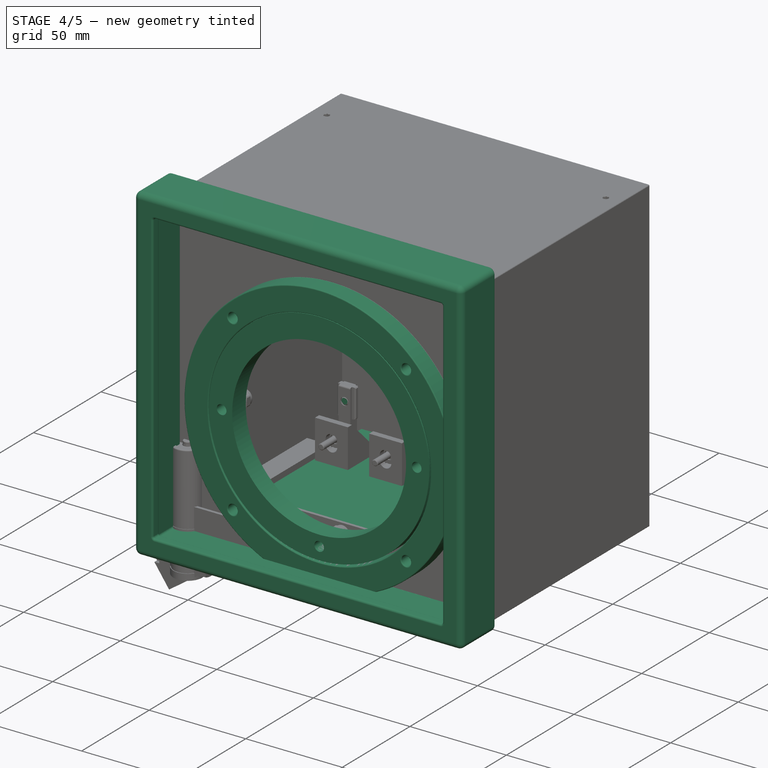
[diagram: stage 4 of 5 — iso view after this stage's code; geometry added in this stage tinted green]
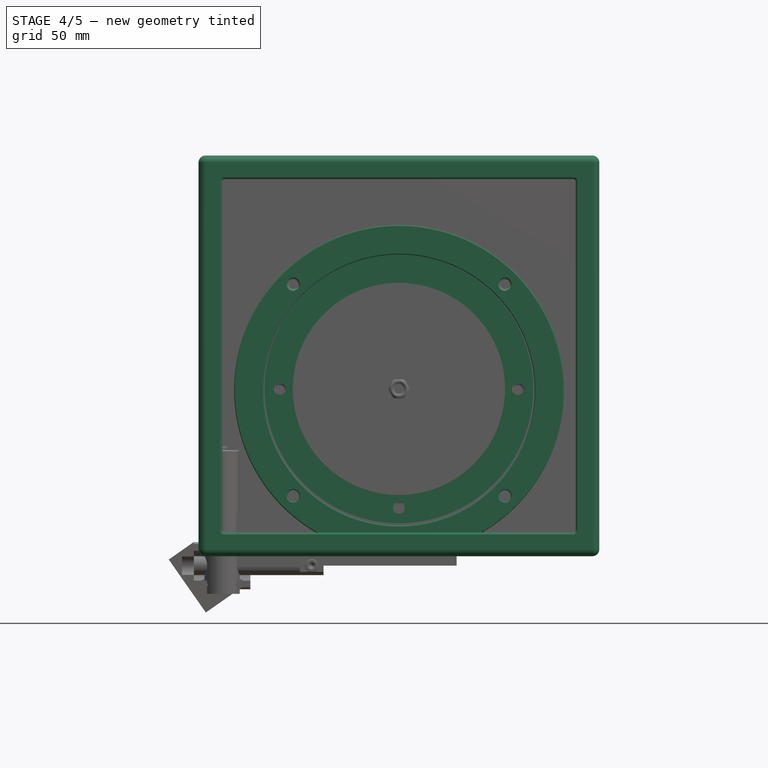
[diagram: stage 4 of 5 — front view after this stage's code; geometry added in this stage tinted green]
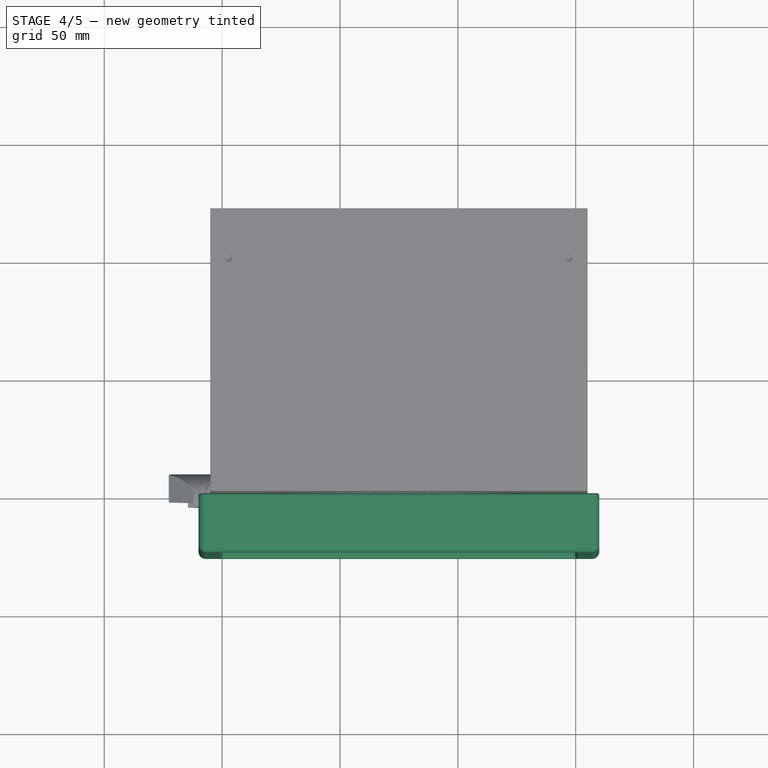
[diagram: stage 4 of 5 — top view after this stage's code; geometry added in this stage tinted green]
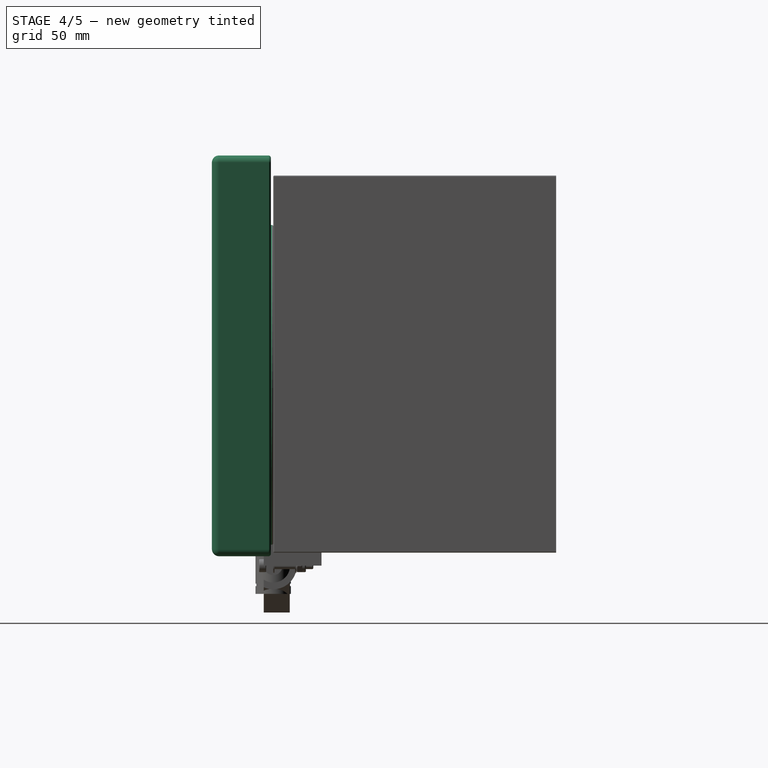
[diagram: stage 4 of 5 — right view after this stage's code; geometry added in this stage tinted green]
FEATURE [Part::Box] Box005  label="Door primitive"
  AttacherType = Attacher::AttachEngine3D
  Height = 170
  Length = 170
  Placement = pos=(-10,-26,-10) rot=(0,0,1;0rad)
  Width = 25
FEATURE [Part::Cylinder] Cylinder001
  Angle = 360
  AttacherType = Attacher::AttachEngine3D
  Height = 10
  Placement = pos=(125.5,0,75) rot=(1,0,0;1.5708rad)
  Radius = 2.5
FEATURE [Part::Cylinder] Cylinder002
  Angle = 360
  AttacherType = Attacher::AttachEngine3D
  Height = 10
  Placement = pos=(75,0,24.5) rot=(1,0,0;1.5708rad)
  Radius = 2.5
FEATURE [Part::Cylinder] Cylinder004
  Angle = 360
  AttacherType = Attacher::AttachEngine3D
  Height = 10
  Placement = pos=(24.5,0,75) rot=(1,0,0;1.5708rad)
  Radius = 2.5
FEATURE [Part::Cylinder] Cylinder005
  Angle = 360
  AttacherType = Attacher::AttachEngine3D
  Height = 10
  Placement = pos=(11.5,0,75) rot=(1,0,0;1.5708rad)
  Radius = 2.5
FEATURE [Part::Cylinder] Cylinder006
  Angle = 360
  AttacherType = Attacher::AttachEngine3D
  Height = 10
  Placement = pos=(138.5,0,75) rot=(1,0,0;1.5708rad)
  Radius = 2.5
FEATURE [Part::Cylinder] Cylinder007
  Angle = 360
  AttacherType = Attacher::AttachEngine3D
  Height = 10
  Placement = pos=(75,0,11.5) rot=(1,0,0;1.5708rad)
  Radius = 2.5
FEATURE [Part::Cylinder] Cylinder008
  Angle = 360
  AttacherType = Attacher::AttachEngine3D
  Height = 10
  Placement = pos=(75,0,138.5) rot=(1,0,0;1.5708rad)
  Radius = 2.5
FEATURE [Part::Cylinder] Cylinder  label="Lazy Susan In 1"
  Angle = 360
  AttacherType = Attacher::AttachEngine3D
  Height = 10
  Placement = pos=(75,0,75) rot=(1,0,0;1.5708rad)
  Radius = 57
FEATURE [Part::Cylinder] Cylinder009  label="Lazy Susan In 2"
  Angle = 360
  AttacherType = Attacher::AttachEngine3D
  Height = 10
  Placement = pos=(75,0,75) rot=(1,0,0;1.5708rad)
  Radius = 45
FEATURE [Part::Cut] Cut011  label="Lazy Susan In Primitive"
  Base = -> Cylinder
  Tool = -> Cylinder009
FEATURE [Part::Cut] Cut
  Base = -> Cut011
  Tool = -> Cylinder004
FEATURE [Part::Cut] Cut012
  Base = -> Cut
  Tool = -> Cylinder001
FEATURE [Part::Cut] Cut013
  Base = -> Cut012
  Tool = -> Cylinder002
FEATURE [Part::Cylinder] Cylinder010  label="Lazy Suzan 2 Out"
  Angle = 360
  AttacherType = Attacher::AttachEngine3D
  Height = 10
  Placement = pos=(75,0,75) rot=(1,0,0;1.5708rad)
  Radius = 57.5
FEATURE [Part::Cylinder] Cylinder011  label="Lazy Susan 1 Out"
  Angle = 360
  AttacherType = Attacher::AttachEngine3D
  Height = 10
  Placement = pos=(75,0,75) rot=(1,0,0;1.5708rad)
  Radius = 70
FEATURE [Part::Cut] Cut015  label="Lazy Susan Out Primive"
  Base = -> Cylinder011
  Tool = -> Cylinder010
FEATURE [Part::Cut] Cut016
  Base = -> Cut015
  Tool = -> Cylinder005
FEATURE [Part::Cut] Cut017
  Base = -> Cut016
  Tool = -> Cylinder007
FEATURE [Part::Cut] Cut018
  Base = -> Cut017
  Tool = -> Cylinder006
FEATURE [Part::Cut] Cut019
  Base = -> Cut018
  Placement = pos=(0,0,0) rot=(0,1,0;0.785398rad)
  Tool = -> Cylinder008
FEATURE [Part::Fillet] Fillet006  label="Lazy Suzan Out Fillet"
  Base = -> Cut019
  Edges = 12 edges r=0.5: [Edge1,Edge3,Edge4,Edge5,Edge6,Edge7,Edge8,Edge9,Edge10,Edge11,Edge12,Edge13]
  Placement = pos=(-31,0,74.5) rot=(0,0,1;0rad)
FEATURE [Part::Box] Box007  label="Door primitive001"
  AttacherType = Attacher::AttachEngine3D
  Height = 150
  Length = 150
  Placement = pos=(0,-26,0) rot=(0,0,1;0rad)
  Width = 5
FEATURE [Part::Box] Box008  label="Door primitive002"
  AttacherType = Attacher::AttachEngine3D
  Height = 156
  Length = 156
  Placement = pos=(-3,-21,-3) rot=(0,0,1;0rad)
  Width = 20
FEATURE [Part::Cut] Cut020
  Base = -> Box005
  Tool = -> Box007
FEATURE [Part::Cut] Cut021  label="Lit Cut"
  Base = -> Cut020
  Tool = -> Box008
FEATURE [Part::Fillet] Fillet007  label="Door_"
  Base = -> Cut021
  Edges = 36 edges: [Edge1 r=3,Edge2 r=3,Edge3 r=1,Edge4 r=3,Edge5 r=3,Edge6 r=3,Edge7 r=3,Edge8 r=1,Edge9 r=1,Edge10 r=1,Edge11 r=1,Edge12 r=1,Edge13 r=3,Edge14 r=1,Edge15 r=1,Edge16 r=1,Edge17 r=1,Edge18 r=1,Edge19 r=1,Edge20 r=3,Edge21 r=1,Edge22 r=1,Edge23 r=1,Edge24 r=1,Edge25 r=1,Edge26 r=1,Edge27 r=1,Edge28 r=1,Edge29 r=1,Edge30 r=1,Edge31 r=1,Edge32 r=1,Edge33 r=1,Edge34 r=1,Edge35 r=1,Edge36 r=1]
  Placement = pos=(0,0,14) rot=(0,0,1;0rad)
FEATURE [Part::Box] Box015001002  label="Cube006"
  AttacherType = Attacher::AttachEngine3D
  Height = 1.6
  Length = 134
  Placement = pos=(8,3,11.5) rot=(0,0,1;0rad)
  Width = 114
FEATURE [Part::Box] Box015001003  label="Cube007"
  AttacherType = Attacher::AttachEngine3D
  Height = 1.6
  Length = 20
  Placement = pos=(65,90,11.5) rot=(0,0,1;0rad)
  Width = 30
FEATURE [Part::Cut] Cut004006
  Base = -> Box015001002
  Tool = -> Box015001003
FEATURE [Part::Box] Box015001010  label="Cube012"
  AttacherType = Attacher::AttachEngine3D
  Height = 1.6
  Length = 125
  Placement = pos=(141,3,13.1) rot=(0,-1,0;1.5708rad)
  Width = 114
FEATURE [App::Part] Part014  label="Door"
  Group = -> [Box005,Box007,Box008,Cut020,Cut021,Fillet007]
  License = CC BY 3.0
  LicenseURL = http://creativecommons.org/licenses/by/3.0/
  Origin = -> Origin016
FEATURE [PartDesign::FeatureBase] Clone025
  BaseFeature = -> Screw022
  Placement = pos=(147.25,120,26.5) rot=(-1,0,0;1.5708rad)
FEATURE [PartDesign::FeatureBase] Clone026
  BaseFeature = -> Screw022
  Placement = pos=(2.75,120,26.5) rot=(-1,0,0;1.5708rad)
FEATURE [PartDesign::FeatureBase] Clone027
  BaseFeature = -> Screw022
  Placement = pos=(147.25,120,144.5) rot=(-1,0,0;1.5708rad)
FEATURE [PartDesign::FeatureBase] Clone028
  BaseFeature = -> Screw022
  Placement = pos=(2.75,120,144.5) rot=(-1,0,0;1.5708rad)
FEATURE [Part::Box] Box015001014  label="Cube015"
  AttacherType = Attacher::AttachEngine3D
  Height = 1.6
  Length = 14
  Placement = pos=(128,43,11.5) rot=(0,0,1;0rad)
  Width = 56
FEATURE [Part::Cut] Cut004013
  Base = -> Cut004006
  Tool = -> Box015001014
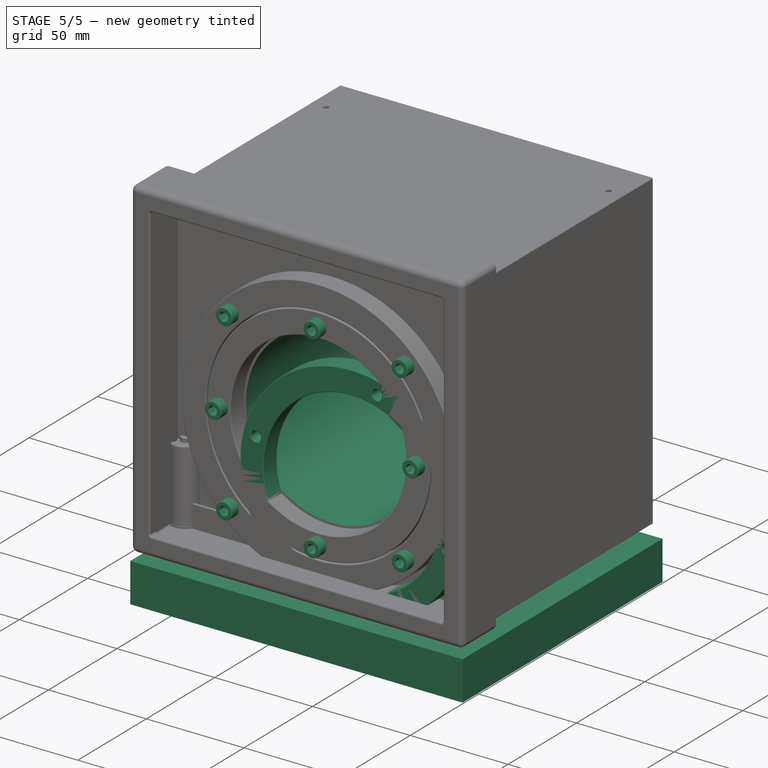
[diagram: stage 5 of 5 — iso view after this stage's code; geometry added in this stage tinted green]
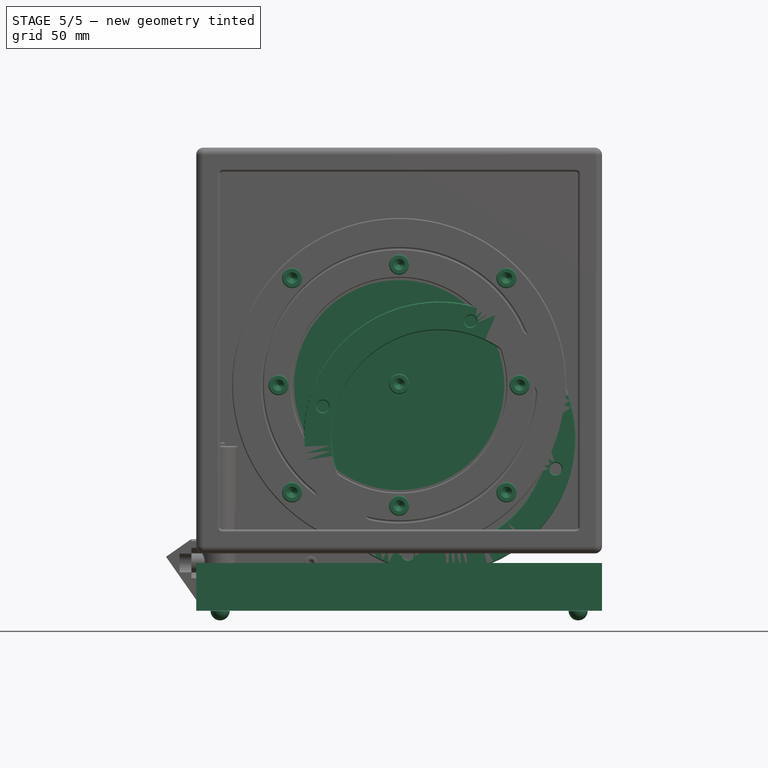
[diagram: stage 5 of 5 — front view after this stage's code; geometry added in this stage tinted green]
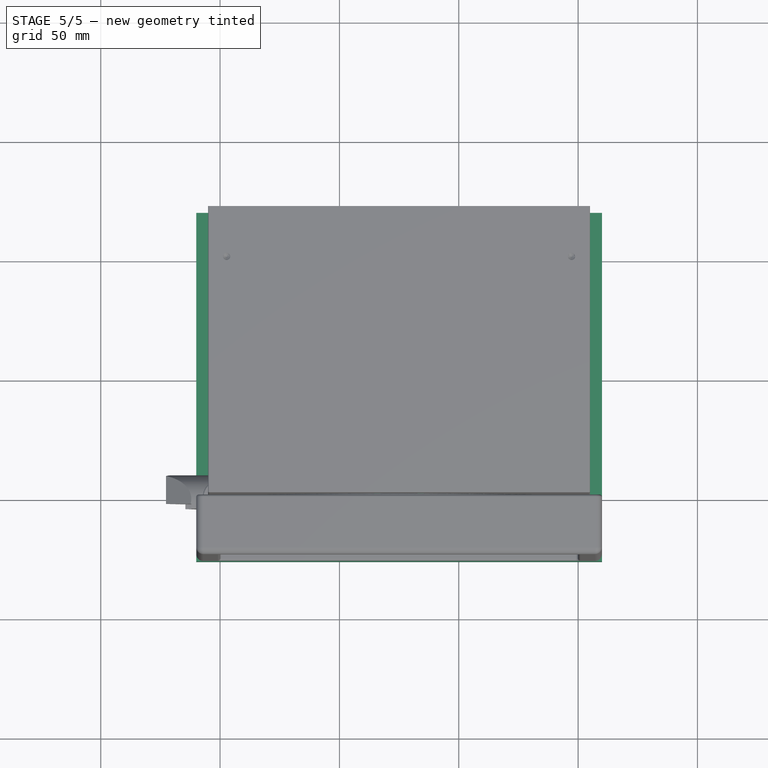
[diagram: stage 5 of 5 — top view after this stage's code; geometry added in this stage tinted green]
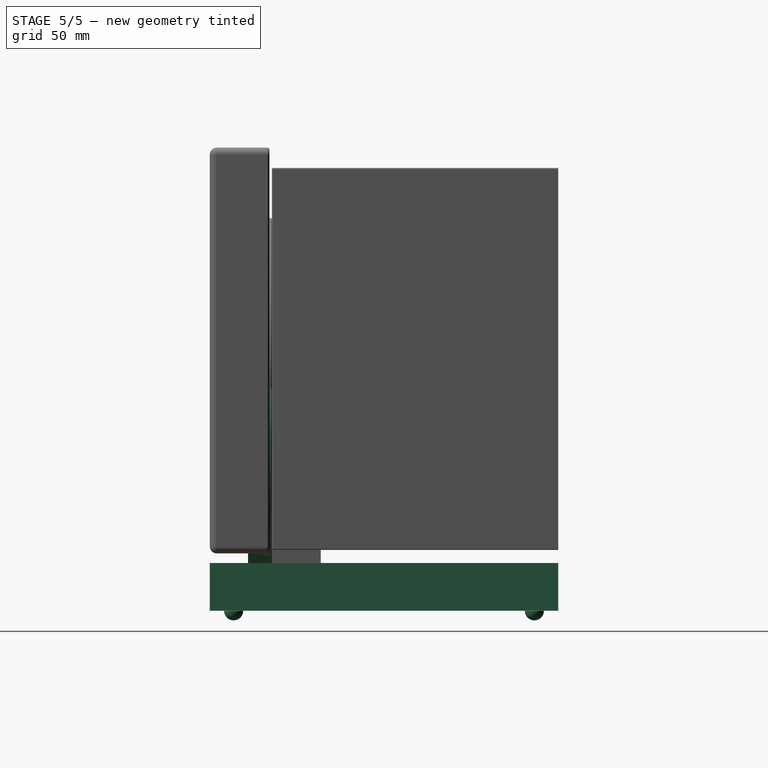
[diagram: stage 5 of 5 — right view after this stage's code; geometry added in this stage tinted green]
FEATURE [PartDesign::Body] Body
FEATURE [Part::Box] Box  label="Cube004"
  AttacherType = Attacher::AttachEngine3D
  Height = 20
  Length = 170
  Placement = pos=(-10,-26,-20) rot=(0,0,1;0rad)
  Width = 146
FEATURE [Part::Feature] Part__Feature017  label="ZGB37RG"
  Placement = pos=(32,17,31.5) rot=(-0.186157,0.694747,0.694747;2.77348rad)
  shape: bbox 37.85 x 88.3 x 37.85 mm, 72 faces (baked)
FEATURE [PartDesign::Chamfer] Chamfer001
  Size = 0.5
FEATURE [Sketcher::SketchObject] Sketch004
  MapMode = 5
  Placement = pos=(0,0,14) rot=(0,0,1;0rad)
  sketch-geometry (16):
    g0: Circle CenterX=0 CenterY=4.7 CenterZ=0 NormalX=0 NormalY=0 NormalZ=1 AngleXU=0 Radius=0.5
    g1: Circle CenterX=0 CenterY=-4.7 CenterZ=0 NormalX=0 NormalY=0 NormalZ=1 AngleXU=0 Radius=0.5
    g2: Circle CenterX=4.7 CenterY=0 CenterZ=0 NormalX=0 NormalY=0 NormalZ=1 AngleXU=0 Radius=0.5
    g3: Circle CenterX=-4.7 CenterY=0 CenterZ=0 NormalX=0 NormalY=0 NormalZ=1 AngleXU=0 Radius=0.5
    g4: Circle CenterX=-3.3234 CenterY=3.3234 CenterZ=0 NormalX=0 NormalY=0 NormalZ=1 AngleXU=0 Radius=0.5
    g5: Circle CenterX=3.3234 CenterY=3.3234 CenterZ=0 NormalX=0 NormalY=0 NormalZ=1 AngleXU=0 Radius=0.5
    g6: Circle CenterX=-3.3234 CenterY=-3.3234 CenterZ=0 NormalX=0 NormalY=0 NormalZ=1 AngleXU=0 Radius=0.5
    g7: Circle CenterX=3.3234 CenterY=-3.3234 CenterZ=0 NormalX=0 NormalY=0 NormalZ=1 AngleXU=0 Radius=0.5
    g8: Circle CenterX=-1.79861 CenterY=4.34223 CenterZ=0 NormalX=0 NormalY=0 NormalZ=1 AngleXU=0 Radius=0.5
    g9: Circle CenterX=1.79861 CenterY=4.34223 CenterZ=0 NormalX=0 NormalY=0 NormalZ=1 AngleXU=0 Radius=0.5
    g10: Circle CenterX=4.34223 CenterY=1.79861 CenterZ=0 NormalX=0 NormalY=0 NormalZ=1 AngleXU=0 Radius=0.5
    g11: Circle CenterX=4.34223 CenterY=-1.79861 CenterZ=0 NormalX=0 NormalY=0 NormalZ=1 AngleXU=0 Radius=0.5
    g12: Circle CenterX=1.79861 CenterY=-4.34223 CenterZ=0 NormalX=0 NormalY=0 NormalZ=1 AngleXU=0 Radius=0.5
    g13: Circle CenterX=-1.79861 CenterY=-4.34223 CenterZ=0 NormalX=0 NormalY=0 NormalZ=1 AngleXU=0 Radius=0.5
    g14: Circle CenterX=-4.34223 CenterY=-1.79861 CenterZ=0 NormalX=0 NormalY=0 NormalZ=1 AngleXU=0 Radius=0.5
    g15: Circle CenterX=-4.31471 CenterY=1.86367 CenterZ=0 NormalX=0 NormalY=0 NormalZ=1 AngleXU=0 Radius=0.5
  constraints (16):
    c: Radius(g0) = 0.5
    c: Equal(g0,g8)
    c: Equal(g8,g4)
    c: Equal(g4,g15)
    c: Equal(g15,g3)
    c: Equal(g3,g14)
    c: Equal(g14,g6)
    c: Equal(g6,g13)
    c: Equal(g13,g1)
    c: Equal(g1,g12)
    c: Equal(g12,g7)
    c: Equal(g7,g11)
    c: Equal(g11,g2)
    c: Equal(g2,g10)
    c: Equal(g10,g5)
    c: Equal(g5,g9)
FEATURE [PartDesign::Pad] Pad002
  Length = 7
  Length2 = 100
  Placement = pos=(0,0,14) rot=(0,0,1;0rad)
  Profile = -> Sketch004
  Reversed = true
  Type = 0
FEATURE [Part::Cut] Cut002  label="GT2 16T"
  Base = -> Chamfer001
  Placement = pos=(40,88,21.25) rot=(-1,0,0;1.5708rad)
  Tool = -> Pad002
FEATURE [Part::Cylinder] Cylinder003
  Angle = 360
  AttacherType = Attacher::AttachEngine3D
  Height = 10
  Placement = pos=(75,0,125.5) rot=(1,0,0;1.5708rad)
  Radius = 2.5
FEATURE [Part::Cut] Cut014
  Base = -> Cut013
  Tool = -> Cylinder003
FEATURE [Part::Fillet] Fillet005  label="Lazy Suzan In Fillet"
  Base = -> Cut014
  Edges = 12 edges r=0.5: [Edge1,Edge3,Edge4,Edge5,Edge6,Edge7,Edge8,Edge9,Edge10,Edge11,Edge12,Edge13]
  Placement = pos=(0,0,-0.5) rot=(0,0,1;0rad)
FEATURE [Part::MultiFuse] Fusion003  label="Lazy_Susan"
  Placement = pos=(0,0,-0.5) rot=(0,0,1;0rad)
FEATURE [Part::Feature] Part__Feature018  label="Header 3 pin v5"
  Placement = pos=(29.41,0,-3.01) rot=(0,1,0;1.5708rad)
  shape: bbox 5.9 x 7 x 10.16 mm, 44 faces (baked)
FEATURE [Part::Feature] Part__Feature019  label="Header 3 pin v006"
  Placement = pos=(32,0.4,-1) rot=(0.57735,0.57735,0.57735;0rad)
  shape: bbox 0.6 x 9.1 x 0.6 mm, 10 faces (baked)
FEATURE [Part::Feature] Part__Feature020  label="Header 3 pin v007"
  Placement = pos=(27.335,0.4,-3.4) rot=(0,0,1;0rad)
  shape: bbox 0.6 x 9.1 x 0.6 mm, 10 faces (baked)
FEATURE [Part::Feature] Part__Feature021  label="Header 3 pin v008"
  Placement = pos=(29.9,0.4,-6.01) rot=(0,0,1;0rad)
  shape: bbox 0.6 x 9.1 x 0.6 mm, 10 faces (baked)
FEATURE [Part::Feature] Part__Feature022  label="BL-LS0805UWC v3"
  Placement = pos=(26.5,0.0068546,-2.40685) rot=(-1,0,0;1.5708rad)
  shape: bbox 1.4 x 0.499 x 1.25 mm, 11 faces (baked)
FEATURE [Part::Feature] Part__Feature023  label="BL-LS0805UWC v004"
  Placement = pos=(26.5,0.0068546,-2.40685) rot=(-1,0,0;1.5708rad)
  shape: bbox 0.1999 x 0.199 x 0.1999 mm, 6 faces (baked)
FEATURE [Part::Feature] Part__Feature024  label="BL-LS0805UWC v005"
  Placement = pos=(26.5,0.0068546,-2.40685) rot=(-1,0,0;1.5708rad)
  shape: bbox 1.8 x 0.301 x 1.25 mm, 30 faces (baked)
FEATURE [Part::Feature] Part__Feature025  label="RES0805 v1"
  Placement = pos=(27,0.005,-0.255) rot=(-1,0,0;1.5708rad)
  shape: bbox 1.9 x 0.4 x 1.25 mm, 10 faces (baked)
FEATURE [Part::Feature] Part__Feature026  label="RES0805 v002"
  Placement = pos=(27,0.005,-0.255) rot=(-1,0,0;1.5708rad)
  shape: bbox 1.2 x 0.05 x 1.25 mm, 6 faces (baked)
FEATURE [Part::Feature] Part__Feature027  label="RES0805 v003"
  Placement = pos=(27,0.005,-0.255) rot=(-1,0,0;1.5708rad)
  shape: bbox 0.4 x 0.5 x 1.25 mm, 15 faces (baked)
FEATURE [Part::Feature] Part__Feature028  label="RES0805 v004"
  Placement = pos=(27,0.005,-0.255) rot=(-1,0,0;1.5708rad)
  shape: bbox 0.4 x 0.5 x 1.25 mm, 15 faces (baked)
FEATURE [Part::Feature] Part__Feature029  label="RES0805 v005"
  Placement = pos=(12.5,-1.605,-0.245) rot=(1,0,0;1.5708rad)
  shape: bbox 1.9 x 0.4 x 1.25 mm, 10 faces (baked)
FEATURE [Part::Feature] Part__Feature030  label="RES0805 v006"
  Placement = pos=(12.5,-1.605,-0.245) rot=(1,0,0;1.5708rad)
  shape: bbox 1.2 x 0.05 x 1.25 mm, 6 faces (baked)
FEATURE [Part::Feature] Part__Feature031  label="RES0805 v007"
  Placement = pos=(12.5,-1.605,-0.245) rot=(1,0,0;1.5708rad)
  shape: bbox 0.4 x 0.5 x 1.25 mm, 15 faces (baked)
FEATURE [Part::Feature] Part__Feature032  label="RES0805 v008"
  Placement = pos=(12.5,-1.605,-0.245) rot=(1,0,0;1.5708rad)
  shape: bbox 0.4 x 0.5 x 1.25 mm, 15 faces (baked)
FEATURE [Part::Feature] Part__Feature033  label="RES0805 v009"
  Placement = pos=(12.5,-1.605,-6.045) rot=(1,0,0;1.5708rad)
  shape: bbox 1.9 x 0.4 x 1.25 mm, 10 faces (baked)
FEATURE [Part::Feature] Part__Feature034  label="RES0805 v010"
  Placement = pos=(12.5,-1.605,-6.045) rot=(1,0,0;1.5708rad)
  shape: bbox 1.2 x 0.05 x 1.25 mm, 6 faces (baked)
FEATURE [Part::Feature] Part__Feature035  label="RES0805 v011"
  Placement = pos=(12.5,-1.605,-6.045) rot=(1,0,0;1.5708rad)
  shape: bbox 0.4 x 0.5 x 1.25 mm, 15 faces (baked)
FEATURE [Part::Feature] Part__Feature036  label="RES0805 v012"
  Placement = pos=(12.5,-1.605,-6.045) rot=(1,0,0;1.5708rad)
  shape: bbox 0.4 x 0.5 x 1.25 mm, 15 faces (baked)
FEATURE [Part::Feature] Part__Feature037  label="COMPOUND"
  shape: bbox 24.5 x 14.7 x 6.01 mm, 397 faces (baked)
FEATURE [Part::Feature] Part__Feature038  label="COMPOUND001"
  shape: bbox 33 x 1.6 x 10.1 mm, 24 faces (baked)
FEATURE [Part::Feature] Part__Feature039  label="COMPOUND002"
  shape: bbox 1.795 x 0.7 x 1.795 mm, 3 faces (baked)
FEATURE [Part::Feature] Part__Feature040  label="COMPOUND003"
  shape: bbox 1.795 x 0.7 x 1.795 mm, 3 faces (baked)
FEATURE [Part::Feature] Part__Feature041  label="COMPOUND004"
  shape: bbox 1.795 x 0.7 x 1.795 mm, 3 faces (baked)
FEATURE [Part::Feature] Part__Feature042  label="COMPOUND005"
  shape: bbox 1.7 x 0.6509 x 1.7 mm, 7 faces (baked)
FEATURE [Part::Feature] Part__Feature043  label="COMPOUND006"
  shape: bbox 1.7 x 0.6509 x 1.7 mm, 7 faces (baked)
FEATURE [Part::Feature] Part__Feature044  label="COMPOUND007"
  shape: bbox 1.7 x 0.6509 x 1.7 mm, 7 faces (baked)
FEATURE [Part::Feature] Part__Feature045  label="COMPOUND008"
  shape: bbox 1.7 x 0.6509 x 1.7 mm, 7 faces (baked)
FEATURE [App::Part] Part004  label="TCST2103"
  Group = -> [Part__Feature045,Part__Feature033,Part__Feature030,Part__Feature024,Part__Feature028,Part__Feature029,Part__Feature026,Part__Feature027,Part__Feature025,Part__Feature031,Part__Feature032,Part__Feature039,Part__Feature041,Part__Feature023,Part__Feature034,Part__Feature037,Part__Feature035,Part__Feature018,Part__Feature022,Part__Feature020,Part__Feature021,Part__Feature019,Part__Feature036,+5 more]
  License = CC BY 3.0
  LicenseURL = http://creativecommons.org/licenses/by/3.0/
  Origin = -> Origin004
  Placement = pos=(78,72,24) rot=(0.57735,0.57735,0.57735;2.0944rad)
FEATURE [Part::Feature] Part__Feature048  label="PCB"
  shape: bbox 68 x 2 x 53 mm, 960 faces, 0 solids (baked)
FEATURE [Part::Feature] Part__Feature009001  label="10 pins-018"
  shape: bbox 0.5 x 3 x 0.5 mm, 29 faces, 0 solids (baked)
FEATURE [Part::Feature] Part__Feature027001  label="8 pin-026"
  shape: bbox 0.5 x 3 x 0.5 mm, 13 faces, 0 solids (baked)
FEATURE [Part::Feature] Part__Feature002001  label="10 pins-017"
  shape: bbox 0.5 x 3 x 0.5 mm, 29 faces, 0 solids (baked)
FEATURE [Part::Feature] Part__Feature021001  label="8 pin-021"
  shape: bbox 21 x 8.5 x 2.5 mm, 78 faces, 0 solids (baked)
FEATURE [Part::Feature] Part__Feature007001  label="10 pins-014"
  shape: bbox 0.5 x 3 x 0.5 mm, 29 faces, 0 solids (baked)
FEATURE [Part::Feature] Part__Feature039001  label="6 pin-012"
  shape: bbox 16 x 8.5 x 2.5 mm, 69 faces, 0 solids (baked)
FEATURE [Part::Feature] Part__Feature012001  label="power jack-002"
  shape: bbox 12 x 11 x 9 mm, 137 faces (baked)
FEATURE [Part::Feature] Part__Feature023001  label="8 pin-025"
  shape: bbox 0.5 x 3 x 0.5 mm, 13 faces, 0 solids (baked)
FEATURE [Part::Feature] Part__Feature037001  label="8 pin-018"
  shape: bbox 0.5 x 3 x 0.5 mm, 13 faces, 0 solids (baked)
FEATURE [Part::Feature] Part__Feature038001  label="8 pin-022"
  shape: bbox 0.5 x 3 x 0.5 mm, 13 faces, 0 solids (baked)
FEATURE [Part::Feature] Part__Feature018001  label="pin 2-008"
  shape: bbox 5 x 10 x 2 mm, 34 faces, 0 solids (baked)
FEATURE [Part::Feature] Part__Feature031001  label="8 pin-027"
  shape: bbox 0.5 x 3 x 0.5 mm, 13 faces, 0 solids (baked)
FEATURE [Part::Feature] Part__Feature014001  label="power jack pin-002"
  shape: bbox 12.6 x 11.32 x 4 mm, 660 faces, 0 solids (baked)
FEATURE [Part::Feature] Part__Feature045001  label="6 pin-010"
  shape: bbox 0.5 x 3 x 0.5 mm, 13 faces, 0 solids (baked)
FEATURE [Part::Feature] Part__Feature032001  label="8 pin-029"
  shape: bbox 0.5 x 3 x 0.5 mm, 13 faces, 0 solids (baked)
FEATURE [Part::Feature] Part__Feature010001  label="10 pins-021"
  shape: bbox 0.5 x 3 x 0.5 mm, 29 faces, 0 solids (baked)
FEATURE [Part::Feature] Part__Feature026001  label="8 pin-032"
  shape: bbox 0.5 x 3 x 0.5 mm, 13 faces, 0 solids (baked)
FEATURE [Part::Feature] Part__Feature040001  label="6 pin-014"
  shape: bbox 0.5 x 3 x 0.5 mm, 13 faces, 0 solids (baked)
FEATURE [Part::Feature] Part__Feature008001  label="10 pins-020"
  shape: bbox 0.5 x 3 x 0.5 mm, 29 faces, 0 solids (baked)
FEATURE [Part::Feature] Part__Feature020001  label="chip-002"
  shape: bbox 7.6 x 1 x 7.6 mm, 182 faces (baked)
FEATURE [Part::Feature] Part__Feature004001  label="10 pins-012"
  shape: bbox 0.5 x 3 x 0.5 mm, 29 faces, 0 solids (baked)
FEATURE [Part::Feature] Part__Feature001001  label="10 pins-019"
  shape: bbox 26 x 8.5 x 2.5 mm, 96 faces, 0 solids (baked)
FEATURE [Part::Feature] Part__Feature036001  label="8 pin-023"
  shape: bbox 0.5 x 3 x 0.5 mm, 13 faces, 0 solids (baked)
FEATURE [Part::Feature] Part__Feature022001  label="8 pin-034"
  shape: bbox 0.5 x 3 x 0.5 mm, 13 faces, 0 solids (baked)
FEATURE [Part::Feature] Part__Feature043001  label="6 pin-015"
  shape: bbox 0.5 x 3 x 0.5 mm, 13 faces, 0 solids (baked)
FEATURE [Part::Feature] Part__Feature042001  label="6 pin-013"
  shape: bbox 0.5 x 3 x 0.5 mm, 13 faces, 0 solids (baked)
FEATURE [Part::Feature] Part__Feature028001  label="8 pin-024"
  shape: bbox 0.5 x 3 x 0.5 mm, 13 faces, 0 solids (baked)
FEATURE [Part::Feature] Part__Feature005001  label="10 pins-013"
  shape: bbox 0.5 x 3 x 0.5 mm, 29 faces, 0 solids (baked)
FEATURE [Part::Feature] Part__Feature044001  label="6 pin-016"
  shape: bbox 0.5 x 3 x 0.5 mm, 13 faces, 0 solids (baked)
FEATURE [Part::Feature] Part__Feature013001  label="power jack back-002"
  shape: bbox 2 x 10.5 x 8 mm, 39 faces (baked)
FEATURE [Part::Feature] Part__Feature006001  label="10 pins-015"
  shape: bbox 0.5 x 3 x 0.5 mm, 29 faces, 0 solids (baked)
FEATURE [Part::Feature] Part__Feature015001  label="power jack pin 1-002"
  shape: bbox 8.476 x 8 x 6.5 mm, 49 faces, 0 solids (baked)
FEATURE [Part::Feature] Part__Feature029001  label="8 pin-033"
  shape: bbox 0.5 x 3 x 0.5 mm, 13 faces, 0 solids (baked)
FEATURE [Part::Feature] Part__Feature017001  label="pin 2-006"
  shape: bbox 5 x 10 x 2 mm, 34 faces, 0 solids (baked)
FEATURE [Part::Feature] Part__Feature034001  label="8 pin-030"
  shape: bbox 0.5 x 3 x 0.5 mm, 13 faces, 0 solids (baked)
FEATURE [Part::Feature] Part__Feature041001  label="6 pin-011"
  shape: bbox 0.5 x 3 x 0.5 mm, 13 faces, 0 solids (baked)
FEATURE [Part::Feature] Part__Feature030001  label="8 pin-035"
  shape: bbox 21 x 8.5 x 2.5 mm, 78 faces, 0 solids (baked)
FEATURE [Part::Feature] Part__Feature025001  label="8 pin-019"
  shape: bbox 0.5 x 3 x 0.5 mm, 13 faces, 0 solids (baked)
FEATURE [Part::Feature] Part__Feature024001  label="8 pin-031"
  shape: bbox 0.5 x 3 x 0.5 mm, 13 faces, 0 solids (baked)
FEATURE [Part::Feature] Part__Feature047001  label="micro usb-002"
  shape: bbox 5.5 x 2.6 x 7.6 mm, 414 faces, 0 solids (baked)
FEATURE [Part::Feature] Part__Feature011001  label="10 pins-022"
  shape: bbox 0.5 x 3 x 0.5 mm, 29 faces, 0 solids (baked)
FEATURE [Part::Feature] Part__Feature035001  label="8 pin-028"
  shape: bbox 0.5 x 3 x 0.5 mm, 13 faces, 0 solids (baked)
FEATURE [Part::Feature] Part__Feature016001  label="button-002"
  shape: bbox 10.5 x 3 x 6.5 mm, 333 faces, 0 solids (baked)
FEATURE [Part::Feature] Part__Feature046001  label="6 pin-009"
  shape: bbox 0.5 x 3 x 0.5 mm, 13 faces, 0 solids (baked)
FEATURE [Part::Feature] Part__Feature019001  label="pin 2-007"
  shape: bbox 5 x 10 x 2 mm, 34 faces, 0 solids (baked)
FEATURE [Part::Feature] Part__Feature003001  label="10 pins-016"
  shape: bbox 0.5 x 3 x 0.5 mm, 29 faces, 0 solids (baked)
FEATURE [Part::Feature] Part__Feature033001  label="8 pin-020"
  shape: bbox 0.5 x 3 x 0.5 mm, 13 faces, 0 solids (baked)
FEATURE [App::Part] Part001  label="Arduino"
  Group = -> [Part__Feature048,Part__Feature009001,Part__Feature027001,Part__Feature002001,Part__Feature021001,Part__Feature007001,Part__Feature039001,Part__Feature012001,Part__Feature023001,Part__Feature037001,Part__Feature038001,Part__Feature018001,Part__Feature031001,Part__Feature014001,Part__Feature045001,Part__Feature032001,Part__Feature010001,Part__Feature026001,Part__Feature040001,Part__Feature008001,+28 more]
  License = CC BY 3.0
  LicenseURL = http://creativecommons.org/licenses/by/3.0/
  Origin = -> Origin001
  Placement = pos=(174,121,15.1) rot=(0.57735,-0.57735,0.57735;2.0944rad)
FEATURE [Part::Sphere] Sphere
  Angle1 = -90
  Angle2 = 0
  Angle3 = 360
  AttacherType = Attacher::AttachEngine3D
  Radius = 4
FEATURE [App::Part] Part005  label="Foot_"
  Group = -> [Sphere]
  License = CC BY 3.0
  LicenseURL = http://creativecommons.org/licenses/by/3.0/
  Origin = -> Origin005
FEATURE [Part::FeaturePython] Clone  label="Foot_001"  # Draft clone (typed FeaturePython)
  AttacherType = Attacher::AttachEngine3D
  Fuse = false
  Objects = -> [Part005]
  Placement = pos=(0,110,-20.05) rot=(0,0,1;0rad)
  Scale = (1,1,1)
FEATURE [Part::FeaturePython] Clone001  label="Foot_002"  # Draft clone (typed FeaturePython)
  AttacherType = Attacher::AttachEngine3D
  Fuse = false
  Objects = -> [Part005]
  Placement = pos=(150,110,-20.05) rot=(0,0,1;0rad)
  Scale = (1,1,1)
FEATURE [Part::FeaturePython] Clone002  label="Foot_003"  # Draft clone (typed FeaturePython)
  AttacherType = Attacher::AttachEngine3D
  Fuse = false
  Objects = -> [Part005]
  Placement = pos=(150,-16,-20.05) rot=(0,0,1;0rad)
  Scale = (1,1,1)
FEATURE [Part::FeaturePython] Clone003  label="Foot_004"  # Draft clone (typed FeaturePython)
  AttacherType = Attacher::AttachEngine3D
  Fuse = false
  Objects = -> [Part005]
  Placement = pos=(0,-16,-20.05) rot=(0,0,1;0rad)
  Scale = (1,1,1)
FEATURE [App::DocumentObjectGroup] Group008  label="Feet"
  Group = -> [Clone,Clone001,Clone002,Clone003,Part005]
FEATURE [Part::Feature] Fillet004001  label="Base_001"
  Placement = pos=(0,0,-0.05) rot=(0,0,1;0rad)
  shape: bbox 170.5 x 146.5 x 20 mm, 26 faces (baked)
FEATURE [Part::Feature] Part__Feature  label="1"
  Placement = pos=(75,102,75) rot=(-1,0,0;1.5708rad)
  shape: bbox 44 x 17 x 44 mm, 447 faces (baked)
FEATURE [App::Part] Part  label="GT2 60T part"
  Group = -> [Part__Feature]
  License = CC BY 3.0
  LicenseURL = http://creativecommons.org/licenses/by/3.0/
  Origin = -> Origin
  Placement = pos=(0,-2.5,0) rot=(0,0,1;0rad)
FEATURE [Part::Feature] Cut002001  label="GT2 16T_001"
  Placement = pos=(-11,-2.5,4.5) rot=(0,0,1;0rad)
  shape: bbox 13 x 15 x 13 mm, 46 faces (baked)
FEATURE [Part::Feature] Part__Feature047002  label="Default"
  shape: bbox 0.83 x 0.7561 x 0.83 mm, 3 faces (baked)
FEATURE [Part::Feature] Part__Feature047003  label="Default001"
  shape: bbox 0.83 x 0.7561 x 0.83 mm, 3 faces (baked)
FEATURE [Part::Feature] Part__Feature047004  label="Default002"
  shape: bbox 0.5 x 1 x 7 mm, 10 faces (baked)
FEATURE [Part::Feature] Part__Feature047005  label="Default003"
  shape: bbox 7.32 x 6.948 x 9.991 mm, 31 faces (baked)
FEATURE [Part::Feature] Part__Feature047006  label="Default004"
  shape: bbox 4.76 x 4.76 x 7.48 mm, 13 faces (baked)
FEATURE [Part::Feature] Part__Feature047007  label="Default005"
  shape: bbox 4.76 x 7.48 x 4.76 mm, 13 faces (baked)
FEATURE [Part::Feature] Part__Feature047008  label="Default006"
  shape: bbox 4.76 x 7.48 x 4.76 mm, 13 faces (baked)
FEATURE [Part::Feature] Part__Feature047009  label="Default007"
  shape: bbox 4.76 x 7.48 x 4.76 mm, 13 faces (baked)
FEATURE [Part::Feature] Part__Feature047010  label="Default008"
  shape: bbox 4.76 x 7.48 x 4.76 mm, 13 faces (baked)
FEATURE [Part::Feature] Part__Feature047011  label="Default009"
  shape: bbox 4.76 x 7.48 x 4.76 mm, 13 faces (baked)
FEATURE [Part::Feature] Part__Feature047012  label="Default010"
  shape: bbox 4.76 x 7.48 x 4.76 mm, 13 faces (baked)
FEATURE [Part::Feature] Part__Feature047013  label="Default011"
  shape: bbox 4.76 x 7.48 x 4.76 mm, 13 faces (baked)
FEATURE [Part::Feature] Part__Feature047014  label="Default012"
  shape: bbox 0.5 x 1 x 7 mm, 10 faces (baked)
FEATURE [Part::Feature] Part__Feature047015  label="Default013"
  shape: bbox 0.83 x 0.7561 x 0.83 mm, 3 faces (baked)
FEATURE [Part::Feature] Part__Feature047016  label="Default014"
  shape: bbox 0.83 x 0.7561 x 0.83 mm, 3 faces (baked)
FEATURE [Part::Feature] Part__Feature047017  label="Default015"
  shape: bbox 0.83 x 0.7561 x 0.83 mm, 3 faces (baked)
FEATURE [Part::Feature] Part__Feature047018  label="Default016"
  shape: bbox 7.32 x 6.948 x 9.991 mm, 31 faces (baked)
FEATURE [Part::Feature] Part__Feature047019  label="Default017"
  shape: bbox 0.5 x 1 x 7 mm, 10 faces (baked)
FEATURE [Part::Feature] Part__Feature047020  label="Default018"
  shape: bbox 0.83 x 0.7561 x 0.83 mm, 3 faces (baked)
FEATURE [Part::Feature] Part__Feature047021  label="Default019"
  shape: bbox 0.83 x 0.7561 x 0.83 mm, 3 faces (baked)
FEATURE [Part::Feature] Part__Feature047022  label="Default020"
  shape: bbox 0.5 x 1 x 7 mm, 10 faces (baked)
FEATURE [Part::Feature] Part__Feature047023  label="Default021"
  shape: bbox 0.5 x 1 x 7 mm, 10 faces (baked)
FEATURE [Part::Feature] Part__Feature047024  label="Default022"
  shape: bbox 0.5 x 1 x 7 mm, 10 faces (baked)
FEATURE [Part::Feature] Part__Feature047025  label="Default023"
  shape: bbox 0.5 x 1 x 7 mm, 10 faces (baked)
FEATURE [Part::Feature] Part__Feature047026  label="Default024"
  shape: bbox 0.5 x 1 x 7 mm, 10 faces (baked)
FEATURE [Part::Feature] Part__Feature047027  label="Default025"
  shape: bbox 39.39 x 19 x 41.67 mm, 345 faces (baked)
FEATURE [Part::Feature] Part__Feature047028  label="Default026"
  shape: bbox 2.7 x 3.5 x 3.8 mm, 14 faces, 0 solids (baked)
FEATURE [Part::Feature] Part__Feature047029  label="Default027"
  shape: bbox 2.7 x 3.5 x 3.8 mm, 14 faces, 0 solids (baked)
FEATURE [Part::Feature] Part__Feature047030  label="Default028"
  shape: bbox 3.8 x 3.5 x 2.7 mm, 14 faces, 0 solids (baked)
FEATURE [Part::Feature] Part__Feature047031  label="Default029"
  shape: bbox 2.7 x 3.5 x 3.8 mm, 14 faces, 0 solids (baked)
FEATURE [Part::Feature] Part__Feature047032  label="Default030"
  shape: bbox 3.8 x 3.5 x 2.7 mm, 14 faces, 0 solids (baked)
FEATURE [Part::Feature] Part__Feature047033  label="Default031"
  shape: bbox 3.8 x 3.5 x 2.7 mm, 14 faces, 0 solids (baked)
FEATURE [Part::Feature] Part__Feature047034  label="Default032"
  shape: bbox 3.8 x 3.5 x 2.7 mm, 14 faces, 0 solids (baked)
FEATURE [App::Part] Default  label="Default033"
  Group = -> [Part__Feature047002,Part__Feature047003,Part__Feature047004,Part__Feature047005,Part__Feature047006,Part__Feature047007,Part__Feature047008,Part__Feature047009,Part__Feature047010,Part__Feature047011,Part__Feature047012,Part__Feature047013,Part__Feature047014,Part__Feature047015,Part__Feature047016,Part__Feature047017,Part__Feature047018,Part__Feature047019,Part__Feature047020,Part__Feature047021,+13 more]
  License = CC BY 3.0
  LicenseURL = http://creativecommons.org/licenses/by/3.0/
  Origin = -> Origin007
FEATURE [App::Part] L298N
  Group = -> [Default]
  License = CC BY 3.0
  LicenseURL = http://creativecommons.org/licenses/by/3.0/
  Origin = -> Origin008
  Placement = pos=(155,40,80) rot=(0,0,1;1.5708rad)
FEATURE [Part::Cylinder] Cylinder017  label="Cylinder013"
  Angle = 360
  AttacherType = Attacher::AttachEngine3D
  Height = 81.5
  Radius = 47.25
FEATURE [Part::Cylinder] Cylinder018  label="Cylinder014"
  Angle = 360
  AttacherType = Attacher::AttachEngine3D
  Height = 2.5
  Placement = pos=(0,0,-2.5) rot=(0,0,1;0rad)
  Radius = 54
FEATURE [Part::Cylinder] Cylinder019  label="Cylinder015"
  Angle = 360
  AttacherType = Attacher::AttachEngine3D
  Height = 79.5
  Radius = 44
FEATURE [Part::Cut] Cut004002
  Base = -> Cylinder017
  Tool = -> Cylinder019
FEATURE [Part::Cylinder] Cylinder020  label="Cylinder016"
  Angle = 360
  AttacherType = Attacher::AttachEngine3D
  Height = 2.5
  Placement = pos=(0,0,-2.5) rot=(0,0,1;0rad)
  Radius = 44
FEATURE [Part::Cut] Cut004003
  Base = -> Cylinder018
  Tool = -> Cylinder020
FEATURE [Part::MultiFuse] Fusion004  label="Cup"
  Placement = pos=(75,2.5,74.5) rot=(-1,0,0;1.5708rad)
  Shapes = -> [Cut004002,Cut004003]
FEATURE [Part::Box] Box010  label="Cube001"
  AttacherType = Attacher::AttachEngine3D
  Height = 16
  Length = 100
  Placement = pos=(25,0,-17) rot=(0,0,1;0rad)
  Width = 120
FEATURE [Part::Box] Box011  label="Cube002"
  AttacherType = Attacher::AttachEngine3D
  Height = 16
  Length = 120
  Placement = pos=(15,118,-17) rot=(0,0,1;0rad)
  Width = 2
FEATURE [Part::Box] Box012  label="Cube003"
  AttacherType = Attacher::AttachEngine3D
  Height = 15.8
  Length = 119.8
  Placement = pos=(15.1,118.2,-16.9) rot=(0,0,1;0rad)
  Width = 1.8
FEATURE [Part::Cut] Cut004004
  Base = -> Box
  Tool = -> Box010
FEATURE [Part::Cut] Cut004005
  Base = -> Cut004004
  Tool = -> Box011
FEATURE [Part::Fillet] Fillet007002
  Base = -> Box012
  Edges = 12 edges r=0.1: [Edge1,Edge2,Edge3,Edge4,Edge5,Edge6,Edge7,Edge8,Edge9,Edge10,Edge11,Edge12]
FEATURE [App::DocumentObjectGroup] Group009  label="Group"
  Group = -> [Box012,Cut004005,Fillet007002]
FEATURE [App::DocumentObjectGroup] Group005  label="Charger"
  Group = -> [Fillet004001,Group008,Group009]
FEATURE [Part::FeaturePython] Screw011  label="M5x20-Screw"  # Fasteners workbench fastener (typed FeaturePython)
  Placement = pos=(30.2,-10,29.6) rot=(1,0,0;1.5708rad)
  diameter = 6
  invert = false
  length = 5
  matchOuter = false
  offset = 0
  thread = false
  type = 15
FEATURE [Part::FeaturePython] Screw015  label="M5x16-Screw"  # Fasteners workbench fastener (typed FeaturePython)
  Placement = pos=(30.2,-10,29.6) rot=(1,0,0;1.5708rad)
  diameter = 6
  invert = false
  length = 4
  matchOuter = false
  offset = 0
  thread = false
  type = 15
FEATURE [Part::FeaturePython] Screw019  label="M5x25-Screw"  # Fasteners workbench fastener (typed FeaturePython)
  Placement = pos=(75,82,75) rot=(1,0,0;1.5708rad)
  diameter = 6
  invert = false
  length = 6
  matchOuter = false
  offset = 0
  thread = false
  type = 15
FEATURE [PartDesign::FeatureBase] Clone004  label="CloneScrew001"
  BaseFeature = -> Screw011
  Placement = pos=(30.2,-10,29.6) rot=(1,0,0;1.5708rad)
FEATURE [PartDesign::FeatureBase] Clone005  label="CloneScrew002"
  BaseFeature = -> Screw011
  Placement = pos=(30.2,-10,119.4) rot=(1,0,0;1.5708rad)
FEATURE [PartDesign::FeatureBase] Clone006  label="CloneScrew003"
  BaseFeature = -> Screw011
  Placement = pos=(120,-10,119.4) rot=(1,0,0;1.5708rad)
FEATURE [PartDesign::FeatureBase] Clone007  label="CloneScrew004"
  BaseFeature = -> Screw011
  Placement = pos=(120,-10,29.6) rot=(1,0,0;1.5708rad)
FEATURE [PartDesign::FeatureBase] Clone008  label="CloneScrew005"
  BaseFeature = -> Screw015
  Placement = pos=(24.5,-10,74.5) rot=(1,0,0;1.5708rad)
FEATURE [PartDesign::FeatureBase] Clone009  label="CloneScrew006"
  BaseFeature = -> Screw015
  Placement = pos=(75,-10,125) rot=(1,0,0;1.5708rad)
FEATURE [PartDesign::FeatureBase] Clone010  label="CloneScrew007"
  BaseFeature = -> Screw015
  Placement = pos=(75,-10,24) rot=(1,0,0;1.5708rad)
FEATURE [PartDesign::FeatureBase] Clone011  label="CloneScrew008"
  BaseFeature = -> Screw015
  Placement = pos=(125.5,-10,74.5) rot=(1,0,0;1.5708rad)
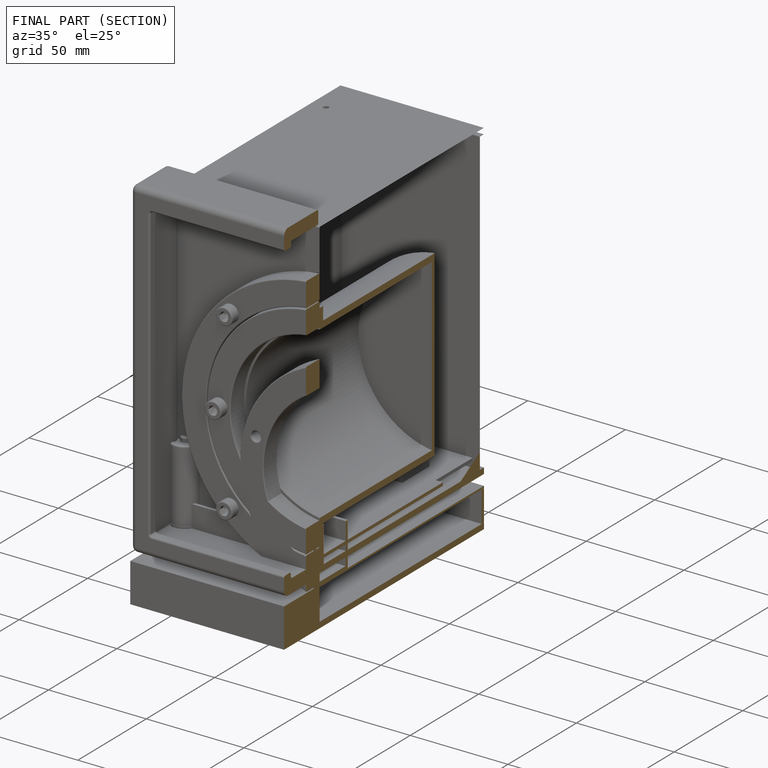
[diagram: finished part — half-section view (interior)]
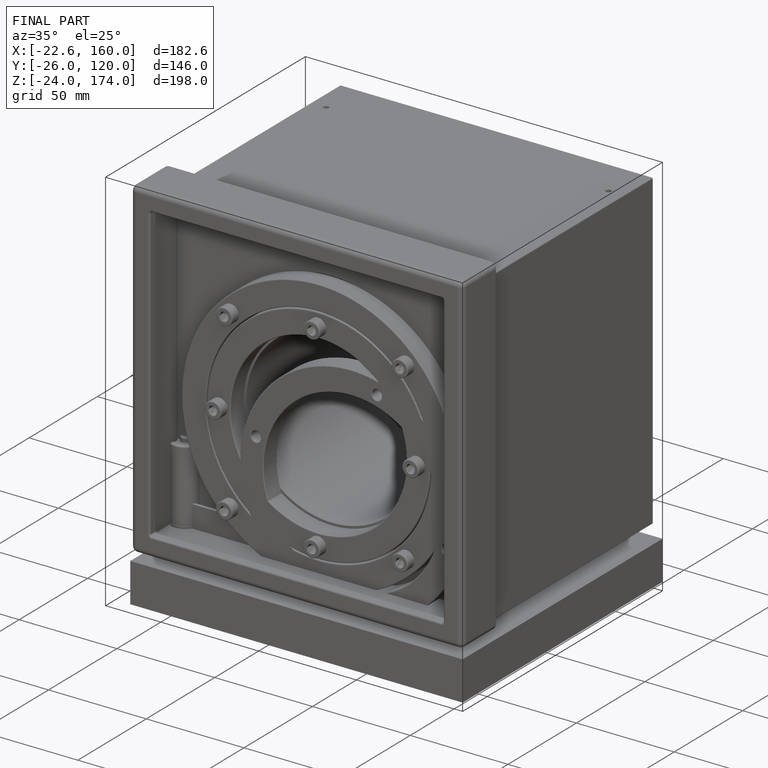
[diagram: finished part — iso view with bounding-box wireframe]
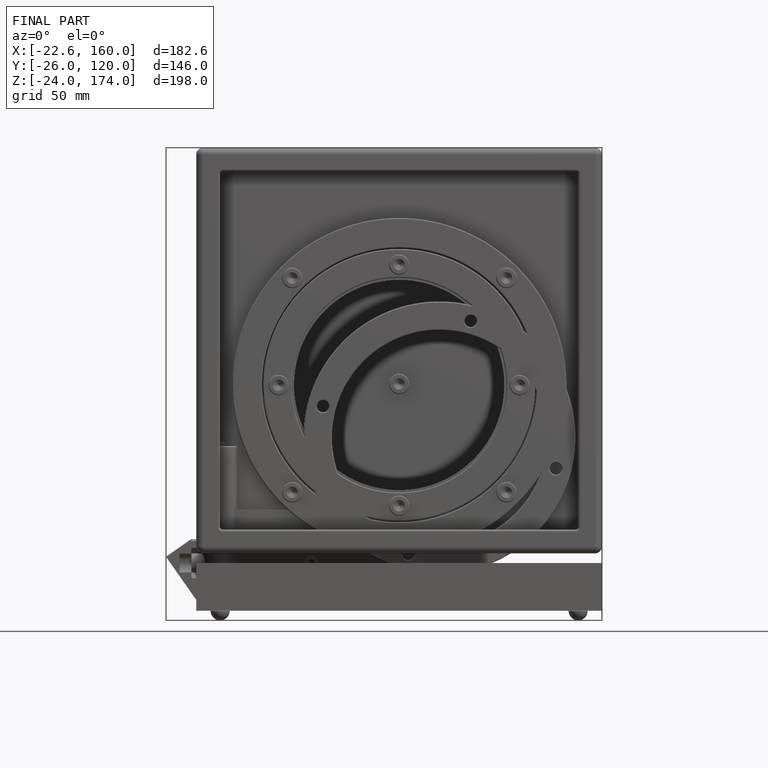
[diagram: finished part — front view with bounding-box wireframe]
